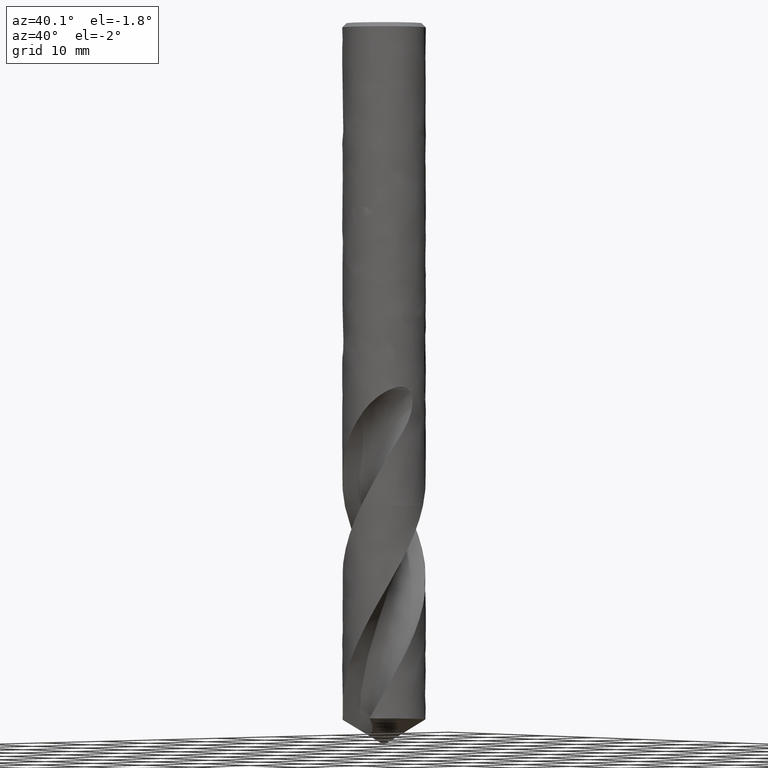
[diagram: clean part render]
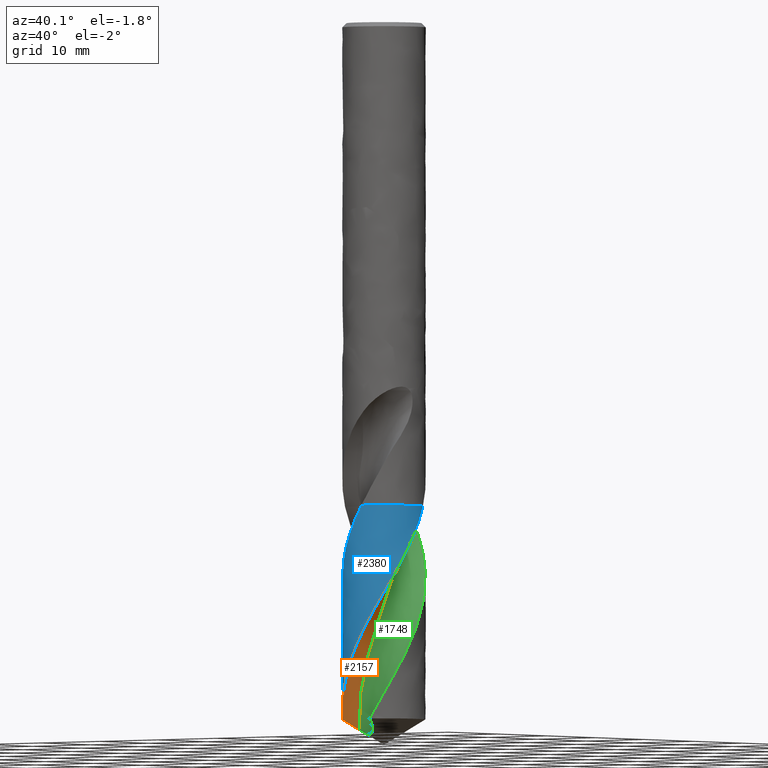
[diagram: same view with three faces highlighted in distinct colors, each labeled with its STEP entity id]
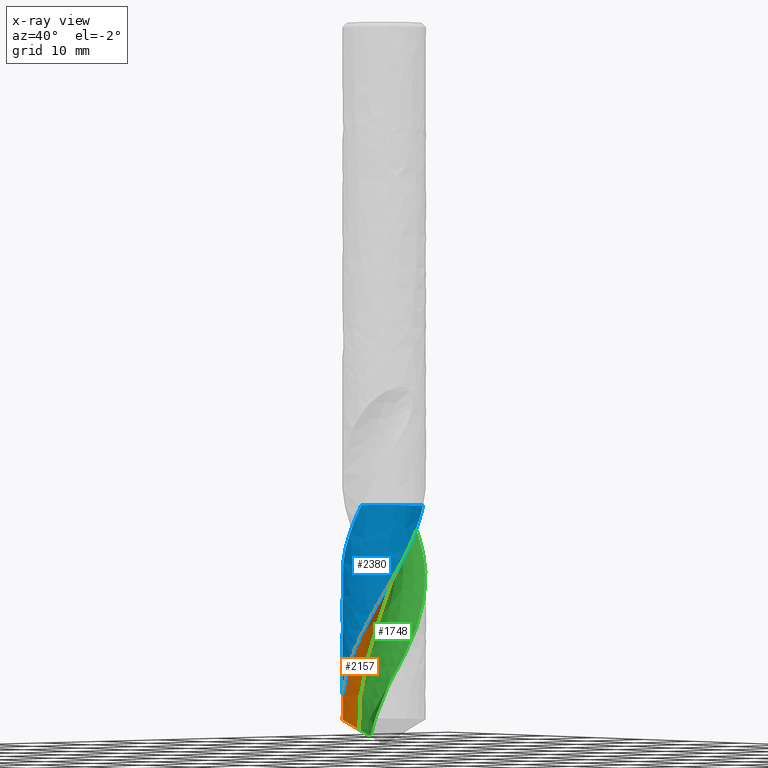
[diagram: x-ray of the same camera — body ghosted, the three highlighted faces saturated]
A machine part, auxiliary view with three faces highlighted in distinct colors.
The next image is the same camera in x-ray (body ghosted, the three faces saturated) — at least one of them is partly hidden behind the body in this view.
Their STEP definitions:

[orange] entity #2157 — the highlighted face is a freeform B-spline surface patch.
#1551 = EDGE_CURVE('', #1552, #1554, #1556, .T.);
#1552 = VERTEX_POINT('', #1553);
#1553 = CARTESIAN_POINT('', (5.20272244532201, 1.78372620010545, -63.6));
#1554 = VERTEX_POINT('', #1555);
#1555 = CARTESIAN_POINT('', (2.94247372623599, 1.49485175941624, -63.6));
#1556 = LINE('', #1557, #1558);
#1557 = CARTESIAN_POINT('', (5.20272244532201, 1.78372620010545, -63.6));
#1558 = VECTOR('', #1559, 2.27863395801377);
#1559 = DIRECTION('', (-2.26024871908602, -0.288874440689208, 0.));
#1753 = EDGE_CURVE('', #1754, #1554, #1756, .T.);
#1754 = VERTEX_POINT('', #1755);
#1755 = CARTESIAN_POINT('', (-2.79652448933047, -1.72770931655798, -93.0248651518685));
#1756 = B_SPLINE_CURVE_WITH_KNOTS('', 3, (#1757, #1758, #1759, #1760, #1761, #1762, #1763, #1764, #1765, #1766, #1767, #1768, #1769, #1770, #1771, #1772, #1773, #1774, #1775, #1776, #1777, #1778, #1779, #1780, #1781, #1782, #1783, #1784, #1785, #1786, #1787, #1788, #1789), .UNSPECIFIED., .F., .U., (4, 1, 1, 1, 1, 1, 1, 1, 1, 1, 1, 1, 1, 1, 1, 1, 1, 1, 1, 1, 1, 1, 1, 1, 1, 1, 1, 1, 1, 1, 4), (2.02513484813147, 2.04565217391304, 3.06847826086957, 4.09130434782609, 5.11413043478261, 6.13695652173913, 7.15978260869565, 8.18260869565217, 9.2054347826087, 10.2282608695652, 11.2510869565217, 12.2739130434783, 13.2967391304348, 14.3195652173913, 15.3423913043478, 16.3652173913043, 17.3880434782609, 18.4108695652174, 19.4336956521739, 20.4565217391304, 21.479347826087, 22.5021739130435, 23.525, 24.5478260869565, 25.570652173913, 26.5934782608696, 27.6163043478261, 28.6391304347826, 29.6619565217391, 30.6847826086957, 31.45), .UNSPECIFIED.);
#1757 = CARTESIAN_POINT('', (-2.79652448933047, -1.72770931655798, -93.0248651518685));
#1758 = CARTESIAN_POINT('', (-2.79525109932545, -1.72966912421712, -93.0180260432747));
#1759 = CARTESIAN_POINT('', (-2.73039373737267, -1.82925837721353, -92.6702449056953));
#1760 = CARTESIAN_POINT('', (-2.5915796419495, -2.01935285045006, -91.9815217391304));
#1761 = CARTESIAN_POINT('', (-2.35759797201996, -2.27799119451376, -90.9586956521739));
#1762 = CARTESIAN_POINT('', (-2.09842313002841, -2.51028053582391, -89.9358695652174));
#1763 = CARTESIAN_POINT('', (-1.81694570414914, -2.71383385022417, -88.9130434782609));
#1764 = CARTESIAN_POINT('', (-1.51627376767168, -2.88657167500362, -87.8902173913044));
#1765 = CARTESIAN_POINT('', (-1.19970294457075, -3.02674275065727, -86.8673913043478));
#1766 = CARTESIAN_POINT('', (-0.870682165932578, -3.13293975593438, -85.8445652173913));
#1767 = CARTESIAN_POINT('', (-0.532778850091068, -3.20411214014143, -84.8217391304348));
#1768 = CARTESIAN_POINT('', (-0.189642911366005, -3.2395753875698, -83.7989130434783));
#1769 = CARTESIAN_POINT('', (0.155029830095232, -3.23901680106992, -82.7760869565217));
#1770 = CARTESIAN_POINT('', (0.497534572918565, -3.20249772751007, -81.7532608695652));
#1771 = CARTESIAN_POINT('', (0.834194444840285, -3.13045222918963, -80.7304347826087));
#1772 = CARTESIAN_POINT('', (1.16139707400646, -3.02368222062833, -79.7076086956522));
#1773 = CARTESIAN_POINT('', (1.4756304944264, -2.88334912280424, -78.6847826086957));
#1774 = CARTESIAN_POINT('', (1.77351806667473, -2.71096211432809, -77.6619565217391));
#1775 = CARTESIAN_POINT('', (2.05185210304712, -2.50836308709396, -76.6391304347826));
#1776 = CARTESIAN_POINT('', (2.30762589739924, -2.27770844071546, -75.6163043478261));
#1777 = CARTESIAN_POINT('', (2.5380638723922, -2.02144787641475, -74.5934782608696));
#1778 = CARTESIAN_POINT('', (2.74064957351347, -1.74230037449199, -73.570652173913));
#1779 = CARTESIAN_POINT('', (2.91315125032303, -1.44322756824518, -72.5478260869565));
#1780 = CARTESIAN_POINT('', (3.05364480660174, -1.12740473012019, -71.525));
#1781 = CARTESIAN_POINT('', (3.16053383880634, -0.798189678360751, -70.5021739130435));
#1782 = CARTESIAN_POINT('', (3.23256681477038, -0.459089663115774, -69.479347826087));
#1783 = CARTESIAN_POINT('', (3.26885031173549, -0.113727309127044, -68.4565217391304));
#1784 = CARTESIAN_POINT('', (3.26886157635904, 0.234197028789018, -67.4336956521739));
#1785 = CARTESIAN_POINT('', (3.2324475815679, 0.580935185101319, -66.4108695652174));
#1786 = CARTESIAN_POINT('', (3.15985792442612, 0.922754090951455, -65.3880434782609));
#1787 = CARTESIAN_POINT('', (3.06072019700124, 1.22791132551784, -64.4510869565217));
#1788 = CARTESIAN_POINT('', (2.98013969828802, 1.41585421959721, -63.8550724637681));
#1789 = CARTESIAN_POINT('', (2.94247372623599, 1.49485175941624, -63.6));
#2157 = ADVANCED_FACE('', (#2158), #2313, .T.);
#2158 = FACE_OUTER_BOUND('', #2159, .T.);
#2159 = EDGE_LOOP('', (#2160, #2161, #2281, #2312));
#2160 = ORIENTED_EDGE('', *, *, #1551, .F.);
#2161 = ORIENTED_EDGE('', *, *, #2162, .T.);
#2162 = EDGE_CURVE('', #1552, #2163, #2165, .T.);
#2163 = VERTEX_POINT('', #2164);
#2164 = CARTESIAN_POINT('', (-4.68774650891869, -2.87663565091594, -91.6952665953484));
#2165 = B_SPLINE_CURVE_WITH_KNOTS('', 3, (#2166, #2167, #2168, #2169, #2170, #2171, #2172, #2173, #2174, #2175, #2176, #2177, #2178, #2179, #2180, #2181, #2182, #2183, #2184, #2185, #2186, #2187, #2188, #2189, #2190, #2191, #2192, #2193, #2194, #2195, #2196, #2197, #2198, #2199, #2200, #2201, #2202, #2203, #2204, #2205, #2206, #2207, #2208, #2209, #2210, #2211, #2212, #2213, #2214, #2215, #2216, #2217, #2218, #2219, #2220, #2221, #2222, #2223, #2224, #2225, #2226, #2227, #2228, #2229, #2230, #2231, #2232, #2233, #2234, #2235, #2236, #2237, #2238, #2239, #2240, #2241, #2242, #2243, #2244, #2245, #2246, #2247, #2248, #2249, #2250, #2251, #2252, #2253, #2254, #2255, #2256, #2257, #2258, #2259, #2260, #2261, #2262, #2263, #2264, #2265, #2266, #2267, #2268, #2269, #2270, #2271, #2272, #2273, #2274, #2275, #2276, #2277, #2278, #2279, #2280), .UNSPECIFIED., .F., .U., (4, 3, 3, 3, 3, 3, 3, 3, 3, 3, 3, 3, 3, 3, 3, 3, 3, 3, 3, 3, 3, 3, 3, 3, 3, 3, 3, 3, 3, 3, 3, 3, 3, 3, 3, 3, 3, 3, 4), (14.6541912505428, 15.3973720165458, 16.3933116497263, 17.0575390066171, 18.0530433212678, 18.2500072327602, 18.3375742477831, 19.3373218240852, 20.336770035305, 21.3359295030275, 22.334810052804, 23.3334198560105, 24.3317658581042, 25.3298536196611, 26.3276874443951, 27.3252704271757, 28.3226044968038, 29.3196906921722, 30.3165292130165, 31.3131192239411, 32.3094588190993, 33.305544969417, 34.3013734520268, 35.2969388183805, 35.5923233990184, 35.6798846979064, 35.7674752407423, 36.7671871101477, 37.7666038464054, 38.7657365418644, 39.7645947160137, 40.7631863818805, 41.7615181764192, 42.7595954644909, 43.7574224052928, 44.7550020289868, 45.7523363543938, 46.7494264155358, 47.0171847424647), .UNSPECIFIED.);
#2166 = CARTESIAN_POINT('', (5.20272244532201, 1.78372620010545, -63.6));
#2167 = CARTESIAN_POINT('', (5.24274699937312, 1.66698370581825, -63.8147972369112));
#2168 = CARTESIAN_POINT('', (5.2788548378056, 1.54884571242469, -64.0296470080782));
#2169 = CARTESIAN_POINT('', (5.31093557465244, 1.42967245265875, -64.2444426978957));
#2170 = CARTESIAN_POINT('', (5.35392710342845, 1.26996787196222, -64.5322912945113));
#2171 = CARTESIAN_POINT('', (5.38970966437493, 1.10831591445888, -64.8202325383916));
#2172 = CARTESIAN_POINT('', (5.41812998128591, 0.945445665224081, -65.1081148176593));
#2173 = CARTESIAN_POINT('', (5.43708449555048, 0.836821737065002, -65.3001136889595));
#2174 = CARTESIAN_POINT('', (5.45277175681692, 0.72762336208198, -65.4921387180444));
#2175 = CARTESIAN_POINT('', (5.46516150605537, 0.618069342979054, -65.6841449913077));
#2176 = CARTESIAN_POINT('', (5.48373052266747, 0.453876318447838, -65.9719125327837));
#2177 = CARTESIAN_POINT('', (5.49489550500628, 0.288818649159162, -66.2597606302762));
#2178 = CARTESIAN_POINT('', (5.49860977322145, 0.123655011360501, -66.5475478651747));
#2179 = CARTESIAN_POINT('', (5.49934465380934, 0.0909768243769016, -66.6044875475337));
#2180 = CARTESIAN_POINT('', (5.49978820392091, 0.058292517396576, -66.6614282229602));
#2181 = CARTESIAN_POINT('', (5.49994038459021, 0.0256079275561165, -66.718368769227));
#2182 = CARTESIAN_POINT('', (5.50000804168969, 0.0110768799753993, -66.7436836283429));
#2183 = CARTESIAN_POINT('', (5.50001811042445, -0.00345431541723884, -66.7689986220221));
#2184 = CARTESIAN_POINT('', (5.49997059396933, -0.0179851458883771, -66.7943136515765));
#2185 = CARTESIAN_POINT('', (5.49942810133291, -0.183882802001947, -67.0833338886423));
#2186 = CARTESIAN_POINT('', (5.49137191801881, -0.349778049763289, -67.372438652377));
#2187 = CARTESIAN_POINT('', (5.47584386134647, -0.514911648881835, -67.6614798223405));
#2188 = CARTESIAN_POINT('', (5.46032045440578, -0.679995800285115, -67.950434441623));
#2189 = CARTESIAN_POINT('', (5.43732186437267, -0.844400800986916, -68.23947255209));
#2190 = CARTESIAN_POINT('', (5.40695850437846, -1.00737268770383, -68.5284479069596));
#2191 = CARTESIAN_POINT('', (5.37660391644732, -1.17029749136832, -68.8173397760082));
#2192 = CARTESIAN_POINT('', (5.33887355118632, -1.33187198449028, -69.1063150734859));
#2193 = CARTESIAN_POINT('', (5.29394527347648, -1.49135624229659, -69.3952279081505));
#2194 = CARTESIAN_POINT('', (5.2490295376114, -1.6507959796604, -69.6840600920511));
#2195 = CARTESIAN_POINT('', (5.19689708856143, -1.80822761900591, -69.972975239083));
#2196 = CARTESIAN_POINT('', (5.13779167922727, -1.96293063068041, -70.2618281642924));
#2197 = CARTESIAN_POINT('', (5.07870229041412, -2.11759171010408, -70.5506027959173));
#2198 = CARTESIAN_POINT('', (5.01261378189042, -2.26960408912408, -70.8394603931367));
#2199 = CARTESIAN_POINT('', (4.93983324650037, -2.41827366043831, -71.128255728041));
#2200 = CARTESIAN_POINT('', (4.86707193742491, -2.56690395795588, -71.4169747723557));
#2201 = CARTESIAN_POINT('', (4.7875856288285, -2.71226788580571, -71.7057769051736));
#2202 = CARTESIAN_POINT('', (4.70174176396179, -2.85370362599508, -71.9945166188437));
#2203 = CARTESIAN_POINT('', (4.615920104188, -2.99510278123155, -72.2831816446817));
#2204 = CARTESIAN_POINT('', (4.52370160850594, -3.1326459884265, -72.5719298645387));
#2205 = CARTESIAN_POINT('', (4.42551084119423, -3.2657087736772, -72.8606155827966));
#2206 = CARTESIAN_POINT('', (4.3273450559056, -3.39873770464952, -73.1492278526694));
#2207 = CARTESIAN_POINT('', (4.22316165807716, -3.52735408647012, -73.4379232617381));
#2208 = CARTESIAN_POINT('', (4.11343897802609, -3.65097518124345, -73.7265562789202));
#2209 = CARTESIAN_POINT('', (4.00374388077559, -3.77456519934236, -74.015116737658));
#2210 = CARTESIAN_POINT('', (3.88845803351122, -3.89322354988045, -74.3037600101801));
#2211 = CARTESIAN_POINT('', (3.76811014722601, -4.00641309881698, -74.5923412943268));
#2212 = CARTESIAN_POINT('', (3.64779228969257, -4.11957440512315, -74.8808505727572));
#2213 = CARTESIAN_POINT('', (3.52235463215913, -4.22732630934363, -75.1694421693883));
#2214 = CARTESIAN_POINT('', (3.39237218677463, -4.32918132519278, -75.4579722223551));
#2215 = CARTESIAN_POINT('', (3.26242204681658, -4.43101102631797, -75.7464305649738));
#2216 = CARTESIAN_POINT('', (3.12786374352781, -4.5269982129754, -76.0349709868427));
#2217 = CARTESIAN_POINT('', (2.98931307154107, -4.61670958154329, -76.3234499704349));
#2218 = CARTESIAN_POINT('', (2.85079681530686, -4.706398665959, -76.6118572963356));
#2219 = CARTESIAN_POINT('', (2.70822064565233, -4.78986011788097, -76.9003468035821));
#2220 = CARTESIAN_POINT('', (2.56223513458968, -4.86671872158995, -77.1887747084966));
#2221 = CARTESIAN_POINT('', (2.41628601743324, -4.94355816459734, -77.4771307088909));
#2222 = CARTESIAN_POINT('', (2.2668570131315, -5.0138361419812, -77.7655690955692));
#2223 = CARTESIAN_POINT('', (2.11462779090685, -5.07723835425562, -78.0539456742705));
#2224 = CARTESIAN_POINT('', (1.96243681971514, -5.14062463529113, -78.3422497918381));
#2225 = CARTESIAN_POINT('', (1.80737265734709, -5.1971696234319, -78.6306364002786));
#2226 = CARTESIAN_POINT('', (1.65013880510413, -5.24662195358971, -78.9189611465163));
#2227 = CARTESIAN_POINT('', (1.49294494937323, -5.29606170426357, -79.20721254987));
#2228 = CARTESIAN_POINT('', (1.33350596868175, -5.33843648301705, -79.4955462798806));
#2229 = CARTESIAN_POINT('', (1.17254436343124, -5.3735593153687, -79.7838184031329));
#2230 = CARTESIAN_POINT('', (1.01162439575178, -5.40867306214105, -80.0720159561111));
#2231 = CARTESIAN_POINT('', (0.84910341658485, -5.4365558595905, -80.3602953237798));
#2232 = CARTESIAN_POINT('', (0.685718200651528, -5.45708626918207, -80.6485136685281));
#2233 = CARTESIAN_POINT('', (0.522376154106378, -5.47761125426069, -80.9366558606726));
#2234 = CARTESIAN_POINT('', (0.358088570549234, -5.49079799145668, -81.2248793547909));
#2235 = CARTESIAN_POINT('', (0.193600146371529, -5.49659157872638, -81.5130421815642));
#2236 = CARTESIAN_POINT('', (0.144796375330891, -5.49831053802718, -81.5985401896494));
#2237 = CARTESIAN_POINT('', (0.0959702652128123, -5.49937943467651, -81.6840409887377));
#2238 = CARTESIAN_POINT('', (0.0471411429997471, -5.49979797016551, -81.7695407777863));
#2239 = CARTESIAN_POINT('', (0.032666652302546, -5.49992203727479, -81.7948856098272));
#2240 = CARTESIAN_POINT('', (0.0181917761034693, -5.49998896161078, -81.8202305658445));
#2241 = CARTESIAN_POINT('', (0.00371702351324773, -5.49999874397587, -81.8455755500925));
#2242 = CARTESIAN_POINT('', (-0.0107625633920783, -5.5000085296081, -81.8709289991235));
#2243 = CARTESIAN_POINT('', (-0.0252420821241647, -5.4999611351318, -81.8962825736321));
#2244 = CARTESIAN_POINT('', (-0.0397210232296656, -5.49985656543091, -81.9216361777175));
#2245 = CARTESIAN_POINT('', (-0.204975956136162, -5.49866306248212, -82.2110087300013));
#2246 = CARTESIAN_POINT('', (-0.37019937100634, -5.49001374580317, -82.5004641714713));
#2247 = CARTESIAN_POINT('', (-0.534639492030829, -5.47395292394454, -82.7898576543162));
#2248 = CARTESIAN_POINT('', (-0.699031067337299, -5.45789684353297, -83.0791657029354));
#2249 = CARTESIAN_POINT('', (-0.862721632824731, -5.43442560630057, -83.3685560185726));
#2250 = CARTESIAN_POINT('', (-1.02496593552182, -5.40365106488399, -83.6578849811545));
#2251 = CARTESIAN_POINT('', (-1.18716412732278, -5.37288526979414, -83.9471317145455));
#2252 = CARTESIAN_POINT('', (-1.34799877776449, -5.33480478408504, -84.2364603323572));
#2253 = CARTESIAN_POINT('', (-1.50673824966186, -5.28958787118682, -84.5257278058106));
#2254 = CARTESIAN_POINT('', (-1.66543410636385, -5.24438338206996, -84.8149158002457));
#2255 = CARTESIAN_POINT('', (-1.82211576135399, -5.19202369304909, -85.1041857726252));
#2256 = CARTESIAN_POINT('', (-1.9760725031163, -5.13275145145642, -85.3933944169265));
#2257 = CARTESIAN_POINT('', (-2.12998816722824, -5.07349502446458, -85.6825258966202));
#2258 = CARTESIAN_POINT('', (-2.28125654745013, -5.00730046900748, -85.9717396401016));
#2259 = CARTESIAN_POINT('', (-2.42919395835178, -4.93447228310255, -86.2608917560238));
#2260 = CARTESIAN_POINT('', (-2.57709287034265, -4.86166304984668, -86.5499686236267));
#2261 = CARTESIAN_POINT('', (-2.72173446301128, -4.78218828807995, -86.8391279764692));
#2262 = CARTESIAN_POINT('', (-2.862467094394, -4.69641162309178, -87.1282255347538));
#2263 = CARTESIAN_POINT('', (-3.00316384856137, -4.61065682529852, -87.4172493928933));
#2264 = CARTESIAN_POINT('', (-3.14002145543507, -4.51856201640103, -87.70635566522));
#2265 = CARTESIAN_POINT('', (-3.27242443619808, -4.42054728618229, -87.9954003259505));
#2266 = CARTESIAN_POINT('', (-3.40479420638196, -4.32255714095353, -88.284372485741));
#2267 = CARTESIAN_POINT('', (-3.53277596325181, -4.21860234133729, -88.5734265277703));
#2268 = CARTESIAN_POINT('', (-3.65579394002475, -4.10915692911311, -88.8624196295707));
#2269 = CARTESIAN_POINT('', (-3.77878142608935, -3.99973864355961, -89.1513411027798));
#2270 = CARTESIAN_POINT('', (-3.89686881153192, -3.88477795176625, -89.4403437676514));
#2271 = CARTESIAN_POINT('', (-4.00952465040992, -3.76479907534986, -89.729286031441));
#2272 = CARTESIAN_POINT('', (-4.12215278795596, -3.64484970095233, -90.0181572462229));
#2273 = CARTESIAN_POINT('', (-4.22940865102544, -3.51982435491288, -90.3071094883347));
#2274 = CARTESIAN_POINT('', (-4.33081065467693, -3.39029188615623, -90.5960013395667));
#2275 = CARTESIAN_POINT('', (-4.43218782324026, -3.26079114212064, -90.8848224362344));
#2276 = CARTESIAN_POINT('', (-4.52776440039924, -3.12672119489117, -91.1737248242771));
#2277 = CARTESIAN_POINT('', (-4.61711315856921, -2.98868969298704, -91.4625664812236));
#2278 = CARTESIAN_POINT('', (-4.64110685275303, -2.95162274642556, -91.5401319508089));
#2279 = CARTESIAN_POINT('', (-4.6646538273504, -2.91426733269284, -91.6176995756519));
#2280 = CARTESIAN_POINT('', (-4.68774650891869, -2.87663565091594, -91.6952665953484));
#2281 = ORIENTED_EDGE('', *, *, #2282, .F.);
#2282 = EDGE_CURVE('', #1754, #2163, #2283, .T.);
#2283 = B_SPLINE_CURVE_WITH_KNOTS('', 3, (#2284, #2285, #2286, #2287, #2288, #2289, #2290, #2291, #2292, #2293, #2294, #2295, #2296, #2297, #2298, #2299, #2300, #2301, #2302, #2303, #2304, #2305, #2306, #2307, #2308, #2309, #2310, #2311), .UNSPECIFIED., .F., .U., (4, 3, 3, 3, 3, 3, 3, 3, 3, 4), (0., 0.295816957672479, 0.591604692497294, 0.887381914552412, 1.18316140080259, 1.47895188353788, 1.77475928608826, 2.07058755020384, 2.36643939053596, 2.58799288725204), .UNSPECIFIED.);
#2284 = CARTESIAN_POINT('', (-2.79652448933047, -1.72770931655798, -93.0248651518685));
#2285 = CARTESIAN_POINT('', (-2.87457381983883, -1.76081584133489, -92.9745130442594));
#2286 = CARTESIAN_POINT('', (-2.95200019387531, -1.79521724380933, -92.9240265106329));
#2287 = CARTESIAN_POINT('', (-3.02877371903962, -1.83088425252025, -92.8734620464338));
#2288 = CARTESIAN_POINT('', (-3.10553965998343, -1.86654773779705, -92.8229025773425));
#2289 = CARTESIAN_POINT('', (-3.18166881040836, -1.90348402099565, -92.7722543623189));
#2290 = CARTESIAN_POINT('', (-3.25712746590992, -1.94166169350169, -92.721563037442));
#2291 = CARTESIAN_POINT('', (-3.33258343949004, -1.97983800911212, -92.6708735142158));
#2292 = CARTESIAN_POINT('', (-3.40738434052905, -2.01926343256934, -92.6201303296586));
#2293 = CARTESIAN_POINT('', (-3.48149429212464, -2.05990464859284, -92.5693713952526));
#2294 = CARTESIAN_POINT('', (-3.55560481103703, -2.10054617572765, -92.5186120722834));
#2295 = CARTESIAN_POINT('', (-3.62903921626606, -2.14241167495029, -92.4678266761398));
#2296 = CARTESIAN_POINT('', (-3.70176059361555, -2.18546612086523, -92.4170474720011));
#2297 = CARTESIAN_POINT('', (-3.77448467459927, -2.22852216745769, -92.3662663799941));
#2298 = CARTESIAN_POINT('', (-3.84651000689106, -2.27277574707208, -92.3154813647262));
#2299 = CARTESIAN_POINT('', (-3.91779943952057, -2.31819029836795, -92.2647204571842));
#2300 = CARTESIAN_POINT('', (-3.9890929500501, -2.36360744746819, -92.2139566460154));
#2301 = CARTESIAN_POINT('', (-4.05966430231324, -2.41019451600767, -92.1632070241608));
#2302 = CARTESIAN_POINT('', (-4.12947668111073, -2.45791356730084, -92.1124963693562));
#2303 = CARTESIAN_POINT('', (-4.19929398336679, -2.50563598393948, -92.0617821382258));
#2304 = CARTESIAN_POINT('', (-4.26836552902421, -2.55449965180273, -92.0110971464456));
#2305 = CARTESIAN_POINT('', (-4.33665524950859, -2.60446541468576, -91.9604636140884));
#2306 = CARTESIAN_POINT('', (-4.4049504123845, -2.65443515962117, -91.9098260464604));
#2307 = CARTESIAN_POINT('', (-4.47247644278284, -2.70551656772136, -91.8592303981396));
#2308 = CARTESIAN_POINT('', (-4.53919827062752, -2.75766946871741, -91.8086968395552));
#2309 = CARTESIAN_POINT('', (-4.58916400431937, -2.79672502289815, -91.7708539564645));
#2310 = CARTESIAN_POINT('', (-4.63868483769741, -2.836386157631, -91.7330412609807));
#2311 = CARTESIAN_POINT('', (-4.68774650891869, -2.87663565091594, -91.6952665953484));
#2312 = ORIENTED_EDGE('', *, *, #1753, .T.);
#2313 = B_SPLINE_SURFACE_WITH_KNOTS('', 3, 1, ((#2314, #2315), (#2316, #2317), (#2318, #2319), (#2320, #2321), (#2322, #2323), (#2324, #2325), (#2326, #2327), (#2328, #2329), (#2330, #2331), (#2332, #2333), (#2334, #2335), (#2336, #2337), (#2338, #2339), (#2340, #2341), (#2342, #2343), (#2344, #2345), (#2346, #2347), (#2348, #2349), (#2350, #2351), (#2352, #2353), (#2354, #2355), (#2356, #2357), (#2358, #2359), (#2360, #2361), (#2362, #2363), (#2364, #2365), (#2366, #2367), (#2368, #2369), (#2370, #2371), (#2372, #2373), (#2374, #2375), (#2376, #2377), (#2378, #2379)), .UNSPECIFIED., .F., .F., .U., (4, 1, 1, 1, 1, 1, 1, 1, 1, 1, 1, 1, 1, 1, 1, 1, 1, 1, 1, 1, 1, 1, 1, 1, 1, 1, 1, 1, 1, 1, 4), (2, 2), (2.02513484813148, 2.04565217391304, 3.06847826086957, 4.09130434782609, 5.11413043478261, 6.13695652173913, 7.15978260869565, 8.18260869565217, 9.2054347826087, 10.2282608695652, 11.2510869565217, 12.2739130434783, 13.2967391304348, 14.3195652173913, 15.3423913043478, 16.3652173913043, 17.3880434782609, 18.4108695652174, 19.4336956521739, 20.4565217391304, 21.479347826087, 22.5021739130435, 23.525, 24.5478260869565, 25.570652173913, 26.5934782608696, 27.6163043478261, 28.6391304347826, 29.6619565217391, 30.6847826086957, 31.4500000000056), (0., 0.208885364886835), .UNSPECIFIED.);
#2314 = CARTESIAN_POINT('', (-2.79652448933047, -1.72770931655798, -93.0248651518685));
#2315 = CARTESIAN_POINT('', (-5.18868643773583, -2.23877917495712, -93.0248651518685));
#2316 = CARTESIAN_POINT('', (-2.79525109932545, -1.72966912421712, -93.0180260432747));
#2317 = CARTESIAN_POINT('', (-5.18701101160028, -2.24243107851786, -93.0180260432747));
#2318 = CARTESIAN_POINT('', (-2.73039373737267, -1.82925837721353, -92.6702449056953));
#2319 = CARTESIAN_POINT('', (-5.10161943364844, -2.42804286981364, -92.6702449056953));
#2320 = CARTESIAN_POINT('', (-2.5915796419495, -2.01935285045006, -91.9815217391304));
#2321 = CARTESIAN_POINT('', (-4.91308690263439, -2.78609298640461, -91.9815217391304));
#2322 = CARTESIAN_POINT('', (-2.35759797201996, -2.27799119451376, -90.9586956521739));
#2323 = CARTESIAN_POINT('', (-4.57984248580162, -3.28453648909264, -90.9586956521739));
#2324 = CARTESIAN_POINT('', (-2.09842313002841, -2.51028053582391, -89.9358695652174));
#2325 = CARTESIAN_POINT('', (-4.1971560408144, -3.74446890062531, -89.9358695652174));
#2326 = CARTESIAN_POINT('', (-1.81694570414914, -2.71383385022417, -88.9130434782609));
#2327 = CARTESIAN_POINT('', (-3.76934665776341, -4.16110704692413, -88.9130434782609));
#2328 = CARTESIAN_POINT('', (-1.51627376767168, -2.88657167500362, -87.8902173913044));
#2329 = CARTESIAN_POINT('', (-3.30118028705619, -4.53013644149754, -87.8902173913044));
#2330 = CARTESIAN_POINT('', (-1.19970294457075, -3.02674275065727, -86.8673913043478));
#2331 = CARTESIAN_POINT('', (-2.79782399131666, -4.84775388348158, -86.8673913043478));
#2332 = CARTESIAN_POINT('', (-0.870682165932578, -3.13293975593438, -85.8445652173913));
#2333 = CARTESIAN_POINT('', (-2.2647916404622, -5.11070278847768, -85.8445652173913));
#2334 = CARTESIAN_POINT('', (-0.532778850091068, -3.20411214014143, -84.8217391304348));
#2335 = CARTESIAN_POINT('', (-1.7078879002954, -5.31630372654467, -84.8217391304348));
#2336 = CARTESIAN_POINT('', (-0.189642911366005, -3.2395753875698, -83.7989130434783));
#2337 = CARTESIAN_POINT('', (-1.13314933601222, -5.46247918498585, -83.7989130434783));
#2338 = CARTESIAN_POINT('', (0.155029830095232, -3.23901680106992, -82.7760869565217));
#2339 = CARTESIAN_POINT('', (-0.54678362612237, -5.5477725606891, -82.7760869565217));
#2340 = CARTESIAN_POINT('', (0.497534572918565, -3.20249772751007, -81.7532608695652));
#2341 = CARTESIAN_POINT('', (0.0448926827622906, -5.57136118444074, -81.7532608695652));
#2342 = CARTESIAN_POINT('', (0.834194444840285, -3.13045222918963, -80.7304347826087));
#2343 = CARTESIAN_POINT('', (0.635517286166381, -5.53306329688199, -80.7304347826087));
#2344 = CARTESIAN_POINT('', (1.16139707400646, -3.02368222062833, -79.7076086956522));
#2345 = CARTESIAN_POINT('', (1.21874553977562, -5.4333389278765, -79.7076086956522));
#2346 = CARTESIAN_POINT('', (1.4756304944264, -2.88334912280424, -78.6847826086957));
#2347 = CARTESIAN_POINT('', (1.78831361637607, -5.2732846860817, -78.6847826086957));
#2348 = CARTESIAN_POINT('', (1.77351806667473, -2.71096211432809, -77.6619565217391));
#2349 = CARTESIAN_POINT('', (2.33810083941841, -5.05462251412204, -77.6619565217391));
#2350 = CARTESIAN_POINT('', (2.05185210304712, -2.50836308709396, -76.6391304347826));
#2351 = CARTESIAN_POINT('', (2.86219063769268, -4.77968251450377, -76.6391304347826));
#2352 = CARTESIAN_POINT('', (2.30762589739924, -2.27770844071546, -75.6163043478261));
#2353 = CARTESIAN_POINT('', (3.35492957765179, -4.45137999969844, -75.6163043478261));
#2354 = CARTESIAN_POINT('', (2.5380638723922, -2.02144787641475, -74.5934782608696));
#2355 = CARTESIAN_POINT('', (3.81098394457599, -4.07318696777957, -74.5934782608696));
#2356 = CARTESIAN_POINT('', (2.74064957351347, -1.74230037449199, -73.570652173913));
#2357 = CARTESIAN_POINT('', (4.22539336621201, -3.64909824906328, -73.570652173913));
#2358 = CARTESIAN_POINT('', (2.91315125032303, -1.44322756824518, -72.5478260869565));
#2359 = CARTESIAN_POINT('', (4.59362098417487, -3.18359262086184, -72.5478260869565));
#2360 = CARTESIAN_POINT('', (3.05364480660174, -1.12740473012019, -71.525));
#2361 = CARTESIAN_POINT('', (4.9115997477922, -2.68158920272418, -71.525));
#2362 = CARTESIAN_POINT('', (3.16053383880634, -0.798189678360751, -70.5021739130435));
#2363 = CARTESIAN_POINT('', (5.17577427601449, -2.14839958626433, -70.5021739130435));
#2364 = CARTESIAN_POINT('', (3.23256681477038, -0.459089663115774, -69.479347826087));
#2365 = CARTESIAN_POINT('', (5.38313836097776, -1.58967581284955, -69.479347826087));
#2366 = CARTESIAN_POINT('', (3.26885031173549, -0.113727309127044, -68.4565217391304));
#2367 = CARTESIAN_POINT('', (5.5312660052616, -1.01135576067502, -68.4565217391304));
#2368 = CARTESIAN_POINT('', (3.26886157635904, 0.234197028789018, -67.4336956521739));
#2369 = CARTESIAN_POINT('', (5.61834220353625, -0.419602260996366, -67.4336956521739));
#2370 = CARTESIAN_POINT('', (3.2324475815679, 0.580935185101319, -66.4108695652174));
#2371 = CARTESIAN_POINT('', (5.64316882481314, 0.179248025278066, -66.4108695652174));
#2372 = CARTESIAN_POINT('', (3.15985792442612, 0.922754090951455, -65.3880434782609));
#2373 = CARTESIAN_POINT('', (5.60523630634286, 0.778783370016998, -65.3880434782609));
#2374 = CARTESIAN_POINT('', (3.06072019700104, 1.22791132551845, -64.4510869565199));
#2375 = CARTESIAN_POINT('', (5.5129769046327, 1.32260666154903, -64.4510869565199));
#2376 = CARTESIAN_POINT('', (2.98013969828751, 1.4158542195984, -63.8550724637644));
#2377 = CARTESIAN_POINT('', (5.42295081580727, 1.66242621942403, -63.8550724637644));
#2378 = CARTESIAN_POINT('', (2.94247372623516, 1.49485175941798, -63.5999999999944));
#2379 = CARTESIAN_POINT('', (5.37865444631771, 1.80621145049637, -63.5999999999944));

[blue] entity #2380 — the highlighted face is a freeform B-spline surface patch.
#1552 = VERTEX_POINT('', #1553);
#1553 = CARTESIAN_POINT('', (5.20272244532201, 1.78372620010545, -63.6));
#1663 = VERTEX_POINT('', #1664);
#1664 = CARTESIAN_POINT('', (0.714456293765341, -5.45339822535445, -63.6));
#1737 = EDGE_CURVE('', #1552, #1663, #1738, .T.);
#1738 = CIRCLE('', #1739, 5.5);
#1739 = AXIS2_PLACEMENT_3D('', #1740, #1741, #1742);
#1740 = CARTESIAN_POINT('', (-9.02056207507939E-16, 4.89357754345122E-15, -63.6));
#1741 = DIRECTION('', (3.74939945665464E-33, 6.12323399573677E-17, -1.));
#1742 = DIRECTION('', (-1., -1.20440518617658E-16, -1.11242542372927E-32));
#2162 = EDGE_CURVE('', #1552, #2163, #2165, .T.);
#2163 = VERTEX_POINT('', #2164);
#2164 = CARTESIAN_POINT('', (-4.68774650891869, -2.87663565091594, -91.6952665953484));
#2165 = B_SPLINE_CURVE_WITH_KNOTS('', 3, (#2166, #2167, #2168, #2169, #2170, #2171, #2172, #2173, #2174, #2175, #2176, #2177, #2178, #2179, #2180, #2181, #2182, #2183, #2184, #2185, #2186, #2187, #2188, #2189, #2190, #2191, #2192, #2193, #2194, #2195, #2196, #2197, #2198, #2199, #2200, #2201, #2202, #2203, #2204, #2205, #2206, #2207, #2208, #2209, #2210, #2211, #2212, #2213, #2214, #2215, #2216, #2217, #2218, #2219, #2220, #2221, #2222, #2223, #2224, #2225, #2226, #2227, #2228, #2229, #2230, #2231, #2232, #2233, #2234, #2235, #2236, #2237, #2238, #2239, #2240, #2241, #2242, #2243, #2244, #2245, #2246, #2247, #2248, #2249, #2250, #2251, #2252, #2253, #2254, #2255, #2256, #2257, #2258, #2259, #2260, #2261, #2262, #2263, #2264, #2265, #2266, #2267, #2268, #2269, #2270, #2271, #2272, #2273, #2274, #2275, #2276, #2277, #2278, #2279, #2280), .UNSPECIFIED., .F., .U., (4, 3, 3, 3, 3, 3, 3, 3, 3, 3, 3, 3, 3, 3, 3, 3, 3, 3, 3, 3, 3, 3, 3, 3, 3, 3, 3, 3, 3, 3, 3, 3, 3, 3, 3, 3, 3, 3, 4), (14.6541912505428, 15.3973720165458, 16.3933116497263, 17.0575390066171, 18.0530433212678, 18.2500072327602, 18.3375742477831, 19.3373218240852, 20.336770035305, 21.3359295030275, 22.334810052804, 23.3334198560105, 24.3317658581042, 25.3298536196611, 26.3276874443951, 27.3252704271757, 28.3226044968038, 29.3196906921722, 30.3165292130165, 31.3131192239411, 32.3094588190993, 33.305544969417, 34.3013734520268, 35.2969388183805, 35.5923233990184, 35.6798846979064, 35.7674752407423, 36.7671871101477, 37.7666038464054, 38.7657365418644, 39.7645947160137, 40.7631863818805, 41.7615181764192, 42.7595954644909, 43.7574224052928, 44.7550020289868, 45.7523363543938, 46.7494264155358, 47.0171847424647), .UNSPECIFIED.);
#2166 = CARTESIAN_POINT('', (5.20272244532201, 1.78372620010545, -63.6));
#2167 = CARTESIAN_POINT('', (5.24274699937312, 1.66698370581825, -63.8147972369112));
#2168 = CARTESIAN_POINT('', (5.2788548378056, 1.54884571242469, -64.0296470080782));
#2169 = CARTESIAN_POINT('', (5.31093557465244, 1.42967245265875, -64.2444426978957));
#2170 = CARTESIAN_POINT('', (5.35392710342845, 1.26996787196222, -64.5322912945113));
#2171 = CARTESIAN_POINT('', (5.38970966437493, 1.10831591445888, -64.8202325383916));
#2172 = CARTESIAN_POINT('', (5.41812998128591, 0.945445665224081, -65.1081148176593));
#2173 = CARTESIAN_POINT('', (5.43708449555048, 0.836821737065002, -65.3001136889595));
#2174 = CARTESIAN_POINT('', (5.45277175681692, 0.72762336208198, -65.4921387180444));
#2175 = CARTESIAN_POINT('', (5.46516150605537, 0.618069342979054, -65.6841449913077));
#2176 = CARTESIAN_POINT('', (5.48373052266747, 0.453876318447838, -65.9719125327837));
#2177 = CARTESIAN_POINT('', (5.49489550500628, 0.288818649159162, -66.2597606302762));
#2178 = CARTESIAN_POINT('', (5.49860977322145, 0.123655011360501, -66.5475478651747));
#2179 = CARTESIAN_POINT('', (5.49934465380934, 0.0909768243769016, -66.6044875475337));
#2180 = CARTESIAN_POINT('', (5.49978820392091, 0.058292517396576, -66.6614282229602));
#2181 = CARTESIAN_POINT('', (5.49994038459021, 0.0256079275561165, -66.718368769227));
#2182 = CARTESIAN_POINT('', (5.50000804168969, 0.0110768799753993, -66.7436836283429));
#2183 = CARTESIAN_POINT('', (5.50001811042445, -0.00345431541723884, -66.7689986220221));
#2184 = CARTESIAN_POINT('', (5.49997059396933, -0.0179851458883771, -66.7943136515765));
#2185 = CARTESIAN_POINT('', (5.49942810133291, -0.183882802001947, -67.0833338886423));
#2186 = CARTESIAN_POINT('', (5.49137191801881, -0.349778049763289, -67.372438652377));
#2187 = CARTESIAN_POINT('', (5.47584386134647, -0.514911648881835, -67.6614798223405));
#2188 = CARTESIAN_POINT('', (5.46032045440578, -0.679995800285115, -67.950434441623));
#2189 = CARTESIAN_POINT('', (5.43732186437267, -0.844400800986916, -68.23947255209));
#2190 = CARTESIAN_POINT('', (5.40695850437846, -1.00737268770383, -68.5284479069596));
#2191 = CARTESIAN_POINT('', (5.37660391644732, -1.17029749136832, -68.8173397760082));
#2192 = CARTESIAN_POINT('', (5.33887355118632, -1.33187198449028, -69.1063150734859));
#2193 = CARTESIAN_POINT('', (5.29394527347648, -1.49135624229659, -69.3952279081505));
#2194 = CARTESIAN_POINT('', (5.2490295376114, -1.6507959796604, -69.6840600920511));
#2195 = CARTESIAN_POINT('', (5.19689708856143, -1.80822761900591, -69.972975239083));
#2196 = CARTESIAN_POINT('', (5.13779167922727, -1.96293063068041, -70.2618281642924));
#2197 = CARTESIAN_POINT('', (5.07870229041412, -2.11759171010408, -70.5506027959173));
#2198 = CARTESIAN_POINT('', (5.01261378189042, -2.26960408912408, -70.8394603931367));
#2199 = CARTESIAN_POINT('', (4.93983324650037, -2.41827366043831, -71.128255728041));
#2200 = CARTESIAN_POINT('', (4.86707193742491, -2.56690395795588, -71.4169747723557));
#2201 = CARTESIAN_POINT('', (4.7875856288285, -2.71226788580571, -71.7057769051736));
#2202 = CARTESIAN_POINT('', (4.70174176396179, -2.85370362599508, -71.9945166188437));
#2203 = CARTESIAN_POINT('', (4.615920104188, -2.99510278123155, -72.2831816446817));
#2204 = CARTESIAN_POINT('', (4.52370160850594, -3.1326459884265, -72.5719298645387));
#2205 = CARTESIAN_POINT('', (4.42551084119423, -3.2657087736772, -72.8606155827966));
#2206 = CARTESIAN_POINT('', (4.3273450559056, -3.39873770464952, -73.1492278526694));
#2207 = CARTESIAN_POINT('', (4.22316165807716, -3.52735408647012, -73.4379232617381));
#2208 = CARTESIAN_POINT('', (4.11343897802609, -3.65097518124345, -73.7265562789202));
#2209 = CARTESIAN_POINT('', (4.00374388077559, -3.77456519934236, -74.015116737658));
#2210 = CARTESIAN_POINT('', (3.88845803351122, -3.89322354988045, -74.3037600101801));
#2211 = CARTESIAN_POINT('', (3.76811014722601, -4.00641309881698, -74.5923412943268));
#2212 = CARTESIAN_POINT('', (3.64779228969257, -4.11957440512315, -74.8808505727572));
#2213 = CARTESIAN_POINT('', (3.52235463215913, -4.22732630934363, -75.1694421693883));
#2214 = CARTESIAN_POINT('', (3.39237218677463, -4.32918132519278, -75.4579722223551));
#2215 = CARTESIAN_POINT('', (3.26242204681658, -4.43101102631797, -75.7464305649738));
#2216 = CARTESIAN_POINT('', (3.12786374352781, -4.5269982129754, -76.0349709868427));
#2217 = CARTESIAN_POINT('', (2.98931307154107, -4.61670958154329, -76.3234499704349));
#2218 = CARTESIAN_POINT('', (2.85079681530686, -4.706398665959, -76.6118572963356));
#2219 = CARTESIAN_POINT('', (2.70822064565233, -4.78986011788097, -76.9003468035821));
#2220 = CARTESIAN_POINT('', (2.56223513458968, -4.86671872158995, -77.1887747084966));
#2221 = CARTESIAN_POINT('', (2.41628601743324, -4.94355816459734, -77.4771307088909));
#2222 = CARTESIAN_POINT('', (2.2668570131315, -5.0138361419812, -77.7655690955692));
#2223 = CARTESIAN_POINT('', (2.11462779090685, -5.07723835425562, -78.0539456742705));
#2224 = CARTESIAN_POINT('', (1.96243681971514, -5.14062463529113, -78.3422497918381));
#2225 = CARTESIAN_POINT('', (1.80737265734709, -5.1971696234319, -78.6306364002786));
#2226 = CARTESIAN_POINT('', (1.65013880510413, -5.24662195358971, -78.9189611465163));
#2227 = CARTESIAN_POINT('', (1.49294494937323, -5.29606170426357, -79.20721254987));
#2228 = CARTESIAN_POINT('', (1.33350596868175, -5.33843648301705, -79.4955462798806));
#2229 = CARTESIAN_POINT('', (1.17254436343124, -5.3735593153687, -79.7838184031329));
#2230 = CARTESIAN_POINT('', (1.01162439575178, -5.40867306214105, -80.0720159561111));
#2231 = CARTESIAN_POINT('', (0.84910341658485, -5.4365558595905, -80.3602953237798));
#2232 = CARTESIAN_POINT('', (0.685718200651528, -5.45708626918207, -80.6485136685281));
#2233 = CARTESIAN_POINT('', (0.522376154106378, -5.47761125426069, -80.9366558606726));
#2234 = CARTESIAN_POINT('', (0.358088570549234, -5.49079799145668, -81.2248793547909));
#2235 = CARTESIAN_POINT('', (0.193600146371529, -5.49659157872638, -81.5130421815642));
#2236 = CARTESIAN_POINT('', (0.144796375330891, -5.49831053802718, -81.5985401896494));
#2237 = CARTESIAN_POINT('', (0.0959702652128123, -5.49937943467651, -81.6840409887377));
#2238 = CARTESIAN_POINT('', (0.0471411429997471, -5.49979797016551, -81.7695407777863));
#2239 = CARTESIAN_POINT('', (0.032666652302546, -5.49992203727479, -81.7948856098272));
#2240 = CARTESIAN_POINT('', (0.0181917761034693, -5.49998896161078, -81.8202305658445));
#2241 = CARTESIAN_POINT('', (0.00371702351324773, -5.49999874397587, -81.8455755500925));
#2242 = CARTESIAN_POINT('', (-0.0107625633920783, -5.5000085296081, -81.8709289991235));
#2243 = CARTESIAN_POINT('', (-0.0252420821241647, -5.4999611351318, -81.8962825736321));
#2244 = CARTESIAN_POINT('', (-0.0397210232296656, -5.49985656543091, -81.9216361777175));
#2245 = CARTESIAN_POINT('', (-0.204975956136162, -5.49866306248212, -82.2110087300013));
#2246 = CARTESIAN_POINT('', (-0.37019937100634, -5.49001374580317, -82.5004641714713));
#2247 = CARTESIAN_POINT('', (-0.534639492030829, -5.47395292394454, -82.7898576543162));
#2248 = CARTESIAN_POINT('', (-0.699031067337299, -5.45789684353297, -83.0791657029354));
#2249 = CARTESIAN_POINT('', (-0.862721632824731, -5.43442560630057, -83.3685560185726));
#2250 = CARTESIAN_POINT('', (-1.02496593552182, -5.40365106488399, -83.6578849811545));
#2251 = CARTESIAN_POINT('', (-1.18716412732278, -5.37288526979414, -83.9471317145455));
#2252 = CARTESIAN_POINT('', (-1.34799877776449, -5.33480478408504, -84.2364603323572));
#2253 = CARTESIAN_POINT('', (-1.50673824966186, -5.28958787118682, -84.5257278058106));
#2254 = CARTESIAN_POINT('', (-1.66543410636385, -5.24438338206996, -84.8149158002457));
#2255 = CARTESIAN_POINT('', (-1.82211576135399, -5.19202369304909, -85.1041857726252));
#2256 = CARTESIAN_POINT('', (-1.9760725031163, -5.13275145145642, -85.3933944169265));
#2257 = CARTESIAN_POINT('', (-2.12998816722824, -5.07349502446458, -85.6825258966202));
#2258 = CARTESIAN_POINT('', (-2.28125654745013, -5.00730046900748, -85.9717396401016));
#2259 = CARTESIAN_POINT('', (-2.42919395835178, -4.93447228310255, -86.2608917560238));
#2260 = CARTESIAN_POINT('', (-2.57709287034265, -4.86166304984668, -86.5499686236267));
#2261 = CARTESIAN_POINT('', (-2.72173446301128, -4.78218828807995, -86.8391279764692));
#2262 = CARTESIAN_POINT('', (-2.862467094394, -4.69641162309178, -87.1282255347538));
#2263 = CARTESIAN_POINT('', (-3.00316384856137, -4.61065682529852, -87.4172493928933));
#2264 = CARTESIAN_POINT('', (-3.14002145543507, -4.51856201640103, -87.70635566522));
#2265 = CARTESIAN_POINT('', (-3.27242443619808, -4.42054728618229, -87.9954003259505));
#2266 = CARTESIAN_POINT('', (-3.40479420638196, -4.32255714095353, -88.284372485741));
#2267 = CARTESIAN_POINT('', (-3.53277596325181, -4.21860234133729, -88.5734265277703));
#2268 = CARTESIAN_POINT('', (-3.65579394002475, -4.10915692911311, -88.8624196295707));
#2269 = CARTESIAN_POINT('', (-3.77878142608935, -3.99973864355961, -89.1513411027798));
#2270 = CARTESIAN_POINT('', (-3.89686881153192, -3.88477795176625, -89.4403437676514));
#2271 = CARTESIAN_POINT('', (-4.00952465040992, -3.76479907534986, -89.729286031441));
#2272 = CARTESIAN_POINT('', (-4.12215278795596, -3.64484970095233, -90.0181572462229));
#2273 = CARTESIAN_POINT('', (-4.22940865102544, -3.51982435491288, -90.3071094883347));
#2274 = CARTESIAN_POINT('', (-4.33081065467693, -3.39029188615623, -90.5960013395667));
#2275 = CARTESIAN_POINT('', (-4.43218782324026, -3.26079114212064, -90.8848224362344));
#2276 = CARTESIAN_POINT('', (-4.52776440039924, -3.12672119489117, -91.1737248242771));
#2277 = CARTESIAN_POINT('', (-4.61711315856921, -2.98868969298704, -91.4625664812236));
#2278 = CARTESIAN_POINT('', (-4.64110685275303, -2.95162274642556, -91.5401319508089));
#2279 = CARTESIAN_POINT('', (-4.6646538273504, -2.91426733269284, -91.6176995756519));
#2280 = CARTESIAN_POINT('', (-4.68774650891869, -2.87663565091594, -91.6952665953484));
#2380 = ADVANCED_FACE('', (#2381), #2481, .T.);
#2381 = FACE_OUTER_BOUND('', #2382, .T.);
#2382 = EDGE_LOOP('', (#2383, #2384, #2414, #2465, #2473, #2480));
#2383 = ORIENTED_EDGE('', *, *, #1737, .T.);
#2384 = ORIENTED_EDGE('', *, *, #2385, .T.);
#2385 = EDGE_CURVE('', #1663, #2386, #2388, .T.);
#2386 = VERTEX_POINT('', #2387);
#2387 = CARTESIAN_POINT('', (-1.45523790382385, -5.30398742864973, -67.3994651246476));
#2388 = B_SPLINE_CURVE_WITH_KNOTS('', 3, (#2389, #2390, #2391, #2392, #2393, #2394, #2395, #2396, #2397, #2398, #2399, #2400, #2401, #2402, #2403, #2404, #2405, #2406, #2407, #2408, #2409, #2410, #2411, #2412, #2413), .UNSPECIFIED., .F., .U., (4, 3, 3, 3, 3, 3, 3, 3, 4), (5.63758894589785, 6.31309553610535, 6.97717186875573, 7.06473277145249, 7.1523237945891, 7.81836378293468, 8.81791880769282, 9.81717496948263, 10.0223664958706), .UNSPECIFIED.);
#2389 = CARTESIAN_POINT('', (0.714456293765341, -5.45339822535445, -63.6));
#2390 = CARTESIAN_POINT('', (0.602931321987996, -5.46800924672235, -63.7950633634761));
#2391 = CARTESIAN_POINT('', (0.490910463112525, -5.47920243172668, -63.9901731018263));
#2392 = CARTESIAN_POINT('', (0.378694652772514, -5.48694727147632, -64.1852337242312));
#2393 = CARTESIAN_POINT('', (0.268377647910881, -5.49456106067166, -64.3769937227995));
#2394 = CARTESIAN_POINT('', (0.157834979974245, -5.49884604563291, -64.5687850125975));
#2395 = CARTESIAN_POINT('', (0.0472962498844058, -5.49979663849004, -64.7605661219952));
#2396 = CARTESIAN_POINT('', (0.0327213124657052, -5.49992197764847, -64.7858531654169));
#2397 = CARTESIAN_POINT('', (0.0181461519456772, -5.49998937675399, -64.8111404338045));
#2398 = CARTESIAN_POINT('', (0.00357127123749257, -5.4999988405473, -64.8364278187712));
#2399 = CARTESIAN_POINT('', (-0.0110086231446526, -5.50000830759611, -64.8617239024508));
#2400 = CARTESIAN_POINT('', (-0.0255882949925753, -5.4999597995079, -64.8870202025148));
#2401 = CARTESIAN_POINT('', (-0.0401672423751716, -5.49985332464784, -64.9123166096839));
#2402 = CARTESIAN_POINT('', (-0.151025200155277, -5.49904369242739, -65.1046698684172));
#2403 = CARTESIAN_POINT('', (-0.261855447889113, -5.49488096805994, -65.297054145513));
#2404 = CARTESIAN_POINT('', (-0.372439331926206, -5.48737541489863, -65.4894204360003));
#2405 = CARTESIAN_POINT('', (-0.538397350784975, -5.47611150656392, -65.7781128502925));
#2406 = CARTESIAN_POINT('', (-0.70386692249045, -5.45730926492879, -66.0668903026584));
#2407 = CARTESIAN_POINT('', (-0.868074705624815, -5.43106309164737, -66.3556102224259));
#2408 = CARTESIAN_POINT('', (-1.03223339128653, -5.40482476586716, -66.6442438160881));
#2409 = CARTESIAN_POINT('', (-1.19521480600383, -5.37113386416282, -66.9329676358594));
#2410 = CARTESIAN_POINT('', (-1.35626771918252, -5.33015364449313, -67.2216343224735));
#2411 = CARTESIAN_POINT('', (-1.38933901195811, -5.32173859122923, -67.2809103723081));
#2412 = CARTESIAN_POINT('', (-1.42233118857965, -5.31301593785301, -67.3401877451116));
#2413 = CARTESIAN_POINT('', (-1.4552379038239, -5.30398742864971, -67.3994651246477));
#2414 = ORIENTED_EDGE('', *, *, #2415, .T.);
#2415 = EDGE_CURVE('', #2386, #2416, #2418, .T.);
#2416 = VERTEX_POINT('', #2417);
#2417 = CARTESIAN_POINT('', (-5.5, 5.22897180196714E-15, -79.8955900690347));
#2418 = B_SPLINE_CURVE_WITH_KNOTS('', 3, (#2419, #2420, #2421, #2422, #2423, #2424, #2425, #2426, #2427, #2428, #2429, #2430, #2431, #2432, #2433, #2434, #2435, #2436, #2437, #2438, #2439, #2440, #2441, #2442, #2443, #2444, #2445, #2446, #2447, #2448, #2449, #2450, #2451, #2452, #2453, #2454, #2455, #2456, #2457, #2458, #2459, #2460, #2461, #2462, #2463, #2464), .UNSPECIFIED., .F., .U., (4, 3, 3, 3, 3, 3, 3, 3, 3, 3, 3, 3, 3, 3, 3, 4), (0., 0.998911147792222, 1.99754720117712, 2.99591602247435, 3.99402358040119, 4.99187464014306, 5.98947273044797, 6.98682017001586, 7.9839182731192, 8.98076759414712, 9.9773676589383, 10.973716916191, 11.9698126901722, 12.9656511145799, 13.9612270721202, 14.4041507434481), .UNSPECIFIED.);
#2419 = CARTESIAN_POINT('', (-1.45523790382385, -5.30398742864973, -67.3994651246476));
#2420 = CARTESIAN_POINT('', (-1.61543401558996, -5.26003493874976, -67.688038616316));
#2421 = CARTESIAN_POINT('', (-1.77364768349607, -5.20881438093821, -67.9767034753213));
#2422 = CARTESIAN_POINT('', (-1.92915023440471, -5.15057078129182, -68.2653137929612));
#2423 = CARTESIAN_POINT('', (-2.0846099608017, -5.0923432215991, -68.5538446289731));
#2424 = CARTESIAN_POINT('', (-2.23744059211261, -5.02706637483969, -68.8424670212206));
#2425 = CARTESIAN_POINT('', (-2.38694071803072, -4.95504934471971, -69.1310349998531));
#2426 = CARTESIAN_POINT('', (-2.53640083815231, -4.8830515861464, -69.4195257585384));
#2427 = CARTESIAN_POINT('', (-2.68260905901597, -4.80428031693679, -69.7081081640205));
#2428 = CARTESIAN_POINT('', (-2.82489731972277, -4.71910533184238, -69.9966357976578));
#2429 = CARTESIAN_POINT('', (-2.96714834498135, -4.63395263620973, -70.2850879264312));
#2430 = CARTESIAN_POINT('', (-3.1055529717077, -4.54235685428152, -70.5736320037278));
#2431 = CARTESIAN_POINT('', (-3.23948188959779, -4.4447448843514, -70.8621210236812));
#2432 = CARTESIAN_POINT('', (-3.3733763898301, -4.34715799918586, -71.1505359064242));
#2433 = CARTESIAN_POINT('', (-3.50286358918982, -4.24350990300589, -71.4390428829801));
#2434 = CARTESIAN_POINT('', (-3.6273572417991, -4.13428100645899, -71.7274947170107));
#2435 = CARTESIAN_POINT('', (-3.75181933349667, -4.02507980099103, -72.0158734243984));
#2436 = CARTESIAN_POINT('', (-3.87135157765918, -3.91024696017403, -72.30434391582));
#2437 = CARTESIAN_POINT('', (-3.98541403957079, -3.79031330277486, -72.592759704267));
#2438 = CARTESIAN_POINT('', (-4.0994478428067, -3.67040977921406, -72.8811030270281));
#2439 = CARTESIAN_POINT('', (-4.20807160951592, -3.54534800529917, -73.1695373316529));
#2440 = CARTESIAN_POINT('', (-4.31079493739255, -3.41570593109985, -73.4579177844074));
#2441 = CARTESIAN_POINT('', (-4.41349258447793, -3.2860962673677, -73.746226142163));
#2442 = CARTESIAN_POINT('', (-4.51034530038361, -3.15184223599014, -74.0346247998629));
#2443 = CARTESIAN_POINT('', (-4.60091677838791, -3.01356347176372, -74.3229700296439));
#2444 = CARTESIAN_POINT('', (-4.69146565825448, -2.87531920893474, -74.6112433155265));
#2445 = CARTESIAN_POINT('', (-4.7757828307952, -2.73298147861536, -74.8996069103125));
#2446 = CARTESIAN_POINT('', (-4.85349072799714, -2.58720462144875, -75.1879169063772));
#2447 = CARTESIAN_POINT('', (-4.93117919480211, -2.4414642149172, -75.4761548122442));
#2448 = CARTESIAN_POINT('', (-5.00230077003023, -2.29221326179282, -75.7644833749373));
#2449 = CARTESIAN_POINT('', (-5.06653973130764, -2.14013437687475, -76.0527579367098));
#2450 = CARTESIAN_POINT('', (-5.13076252600398, -1.988093764612, -76.3409599503903));
#2451 = CARTESIAN_POINT('', (-5.18813771141133, -1.83315216169128, -76.6292529459608));
#2452 = CARTESIAN_POINT('', (-5.23841331943125, -1.67601488501903, -76.9174916583913));
#2453 = CARTESIAN_POINT('', (-5.28867613672993, -1.51891758596575, -77.2056570394159));
#2454 = CARTESIAN_POINT('', (-5.33186729392596, -1.35954986877165, -77.4939133791044));
#2455 = CARTESIAN_POINT('', (-5.36779971479318, -1.19863514960409, -77.7821155881166));
#2456 = CARTESIAN_POINT('', (-5.40372285222258, -1.03776200408379, -78.0702433377069));
#2457 = CARTESIAN_POINT('', (-5.4324084623314, -0.875264307550982, -78.3584614045582));
#2458 = CARTESIAN_POINT('', (-5.45373514978703, -0.711879846587727, -78.6466261684594));
#2459 = CARTESIAN_POINT('', (-5.47505621630185, -0.548538447838781, -78.934714982587));
#2460 = CARTESIAN_POINT('', (-5.48903288035566, -0.384228849356209, -79.2228931674977));
#2461 = CARTESIAN_POINT('', (-5.49561033295786, -0.219697674743107, -79.5110188257541));
#2462 = CARTESIAN_POINT('', (-5.49853658829025, -0.146499089185081, -79.6392035949746));
#2463 = CARTESIAN_POINT('', (-5.5, -0.0732446783163526, -79.7673982282007));
#2464 = CARTESIAN_POINT('', (-5.5, 5.35387189223747E-15, -79.8955900690347));
#2465 = ORIENTED_EDGE('', *, *, #2466, .T.);
#2466 = EDGE_CURVE('', #2416, #2467, #2469, .T.);
#2467 = VERTEX_POINT('', #2468);
#2468 = CARTESIAN_POINT('', (-5.5, 5.95149360641335E-15, -91.6952665953484));
#2469 = LINE('', #2470, #2471);
#2470 = CARTESIAN_POINT('', (-5.5, 5.22897180196714E-15, -79.8955900690347));
#2471 = VECTOR('', #2472, 11.7996765263137);
#2472 = DIRECTION('', (0., 7.22521804446214E-16, -11.7996765263137));
#2473 = ORIENTED_EDGE('', *, *, #2474, .F.);
#2474 = EDGE_CURVE('', #2163, #2467, #2475, .T.);
#2475 = CIRCLE('', #2476, 5.5);
#2476 = AXIS2_PLACEMENT_3D('', #2477, #2478, #2479);
#2477 = CARTESIAN_POINT('', (3.43802182750402E-31, 5.61471573664783E-15, -91.6952665953484));
#2478 = DIRECTION('', (3.74939945665464E-33, 6.12323399573677E-17, -1.));
#2479 = DIRECTION('', (-1., 6.12323399573677E-17, 0.));
#2480 = ORIENTED_EDGE('', *, *, #2162, .F.);
#2481 = (
   BOUNDED_SURFACE ()
   B_SPLINE_SURFACE (1, 2, ((#2482, #2483, #2484, #2485, #2486, #2487, #2488, #2489, #2490), (#2491, #2492, #2493, #2494, #2495, #2496, #2497, #2498, #2499)), .UNSPECIFIED., .F., .T., .U.)
   B_SPLINE_SURFACE_WITH_KNOTS ((2, 2), (3, 2, 2, 2, 3), (-1.00539640473814, -0.387238723872387), (0., 0.25, 0.5, 0.75, 1.), .UNSPECIFIED.)
   GEOMETRIC_REPRESENTATION_ITEM ()
   RATIONAL_B_SPLINE_SURFACE (((1., 0.707106781186548, 1., 0.707106781186548, 1., 0.707106781186548, 1., 0.707106781186548, 1.), (1., 0.707106781186548, 1., 0.707106781186548, 1., 0.707106781186548, 1., 0.707106781186548, 1.)))
   REPRESENTATION_ITEM ('')
   SURFACE ()
);
#2482 = CARTESIAN_POINT('', (-5.5, 5.95149360641335E-15, -91.6952665953484));
#2483 = CARTESIAN_POINT('', (-5.5, 5.5, -91.6952665953484));
#2484 = CARTESIAN_POINT('', (-1.90125692967058E-15, 5.50000000000001, -91.6952665953484));
#2485 = CARTESIAN_POINT('', (5.5, 5.50000000000001, -91.6952665953484));
#2486 = CARTESIAN_POINT('', (5.5, 7.94989505073864E-15, -91.6952665953484));
#2487 = CARTESIAN_POINT('', (5.5, -5.49999999999999, -91.6952665953484));
#2488 = CARTESIAN_POINT('', (7.70700254185746E-16, -5.49999999999999, -91.6952665953484));
#2489 = CARTESIAN_POINT('', (-5.5, -5.5, -91.6952665953484));
#2490 = CARTESIAN_POINT('', (-5.5, 5.95149360641335E-15, -91.6952665953484));
#2491 = CARTESIAN_POINT('', (-5.5, 4.23115469105411E-15, -63.6));
#2492 = CARTESIAN_POINT('', (-5.5, 5.5, -63.6));
#2493 = CARTESIAN_POINT('', (-1.90125692967058E-15, 5.5, -63.6));
#2494 = CARTESIAN_POINT('', (5.5, 5.50000000000001, -63.6));
#2495 = CARTESIAN_POINT('', (5.5, 6.22955613537939E-15, -63.6));
#2496 = CARTESIAN_POINT('', (5.5, -5.49999999999999, -63.6));
#2497 = CARTESIAN_POINT('', (7.70700254185746E-16, -5.49999999999999, -63.6));
#2498 = CARTESIAN_POINT('', (-5.5, -5.5, -63.6));
#2499 = CARTESIAN_POINT('', (-5.5, 4.23115469105411E-15, -63.6));

[green] entity #1748 — the highlighted face is a freeform B-spline surface patch.
#1554 = VERTEX_POINT('', #1555);
#1555 = CARTESIAN_POINT('', (2.94247372623599, 1.49485175941624, -63.6));
#1561 = EDGE_CURVE('', #1554, #1562, #1564, .T.);
#1562 = VERTEX_POINT('', #1563);
#1563 = CARTESIAN_POINT('', (-0.714456293765341, 5.45339822535446, -63.6));
#1564 = B_SPLINE_CURVE_WITH_KNOTS('', 3, (#1565, #1566, #1567, #1568, #1569, #1570, #1571, #1572, #1573, #1574, #1575, #1576, #1577, #1578, #1579, #1580, #1581, #1582, #1583, #1584, #1585, #1586, #1587, #1588, #1589, #1590, #1591, #1592, #1593, #1594, #1595, #1596, #1597, #1598, #1599, #1600, #1601, #1602, #1603, #1604, #1605, #1606, #1607, #1608, #1609, #1610, #1611, #1612, #1613, #1614, #1615, #1616, #1617, #1618, #1619, #1620, #1621, #1622, #1623, #1624, #1625, #1626, #1627, #1628, #1629, #1630, #1631, #1632, #1633, #1634), .UNSPECIFIED., .F., .U., (4, 3, 3, 3, 3, 3, 3, 3, 3, 3, 3, 3, 3, 3, 3, 3, 3, 3, 3, 3, 3, 3, 3, 4), (0., 0.297207822818699, 0.594099062556648, 0.890680923475544, 1.18695915059316, 1.4829381332927, 1.77862098314817, 2.07400958893483, 2.36910465088771, 2.66390569549937, 2.95841107145926, 3.15485063121478, 3.19376106299035, 3.49094778241057, 3.78781844060555, 4.08438014197337, 4.38063853935954, 4.67659793585614, 4.9722613610441, 5.26763062458235, 5.56270634915277, 5.8574879840046, 6.15197379965706, 6.29654215891658), .UNSPECIFIED.);
#1565 = CARTESIAN_POINT('', (2.94247372623599, 1.49485175941624, -63.6));
#1566 = CARTESIAN_POINT('', (2.84420379591717, 1.48229222518547, -63.6));
#1567 = CARTESIAN_POINT('', (2.74526944946921, 1.4741438602135, -63.6));
#1568 = CARTESIAN_POINT('', (2.64626884204197, 1.47045592935775, -63.6));
#1569 = CARTESIAN_POINT('', (2.54737368916502, 1.46677192685254, -63.6));
#1570 = CARTESIAN_POINT('', (2.44821342986921, 1.4675314294106, -63.6));
#1571 = CARTESIAN_POINT('', (2.34938631056536, 1.47272985485674, -63.6));
#1572 = CARTESIAN_POINT('', (2.25066217516057, 1.47792286322582, -63.6));
#1573 = CARTESIAN_POINT('', (2.15207225713865, 1.48755595647284, -63.6));
#1574 = CARTESIAN_POINT('', (2.05421012483209, 1.50157113780451, -63.6));
#1575 = CARTESIAN_POINT('', (1.9564481815632, 1.51557197071051, -63.6));
#1576 = CARTESIAN_POINT('', (1.8592166392032, 1.53397396020159, -63.6));
#1577 = CARTESIAN_POINT('', (1.7630996916715, 1.5566665420503, -63.6));
#1578 = CARTESIAN_POINT('', (1.66707982336262, 1.57933620413026, -63.6));
#1579 = CARTESIAN_POINT('', (1.57198028251203, 1.60633311142022, -63.6));
#1580 = CARTESIAN_POINT('', (1.47837130148837, 1.63749538605774, -63.6));
#1581 = CARTESIAN_POINT('', (1.38485597810731, 1.66862648222127, -63.6));
#1582 = CARTESIAN_POINT('', (1.29264159763866, 1.7039767269576, -63.6));
#1583 = CARTESIAN_POINT('', (1.20227998832609, 1.74333457773541, -63.6));
#1584 = CARTESIAN_POINT('', (1.11200830092682, 1.78265326217619, -63.6));
#1585 = CARTESIAN_POINT('', (1.02340589357005, 1.82604987729376, -63.6));
#1586 = CARTESIAN_POINT('', (0.937001926603489, 1.87326524539046, -63.6));
#1587 = CARTESIAN_POINT('', (0.850683823990601, 1.92043369299025, -63.6));
#1588 = CARTESIAN_POINT('', (0.76638820340437, 1.97150705351481, -63.6));
#1589 = CARTESIAN_POINT('', (0.684617505157916, 2.02618090646072, -63.6));
#1590 = CARTESIAN_POINT('', (0.602928278973816, 2.08080028522882, -63.6));
#1591 = CARTESIAN_POINT('', (0.523596877790301, 2.13912132726375, -63.6));
#1592 = CARTESIAN_POINT('', (0.447095212531325, 2.20079710390396, -63.6));
#1593 = CARTESIAN_POINT('', (0.370670274084002, 2.26241102325411, -63.6));
#1594 = CARTESIAN_POINT('', (0.296918075111338, 2.32749492600051, -63.6));
#1595 = CARTESIAN_POINT('', (0.226276459803446, 2.39566242896971, -63.6));
#1596 = CARTESIAN_POINT('', (0.179157429238141, 2.44113118901953, -63.6));
#1597 = CARTESIAN_POINT('', (0.133368982838147, 2.4880203718166, -63.6));
#1598 = CARTESIAN_POINT('', (0.089032160859075, 2.53620602734476, -63.6));
#1599 = CARTESIAN_POINT('', (0.0802499945331595, 2.54575056442438, -63.6));
#1600 = CARTESIAN_POINT('', (0.0715238168780197, 2.55534692293957, -63.6));
#1601 = CARTESIAN_POINT('', (0.0628545335177946, 2.5649941069567, -63.6));
#1602 = CARTESIAN_POINT('', (-0.0033589666666652, 2.63867653192256, -63.6));
#1603 = CARTESIAN_POINT('', (-0.0663224471391345, 2.71541371885909, -63.6));
#1604 = CARTESIAN_POINT('', (-0.125655285888055, 2.79474178199896, -63.6));
#1605 = CARTESIAN_POINT('', (-0.184925023534246, 2.87398547890308, -63.6));
#1606 = CARTESIAN_POINT('', (-0.240691093283979, 2.95597395694636, -63.6));
#1607 = CARTESIAN_POINT('', (-0.292617097946262, 3.04021263772599, -63.6));
#1608 = CARTESIAN_POINT('', (-0.3444890625975, 3.12436365030798, -63.6));
#1609 = CARTESIAN_POINT('', (-0.392633105871103, 3.21092911802733, -63.6));
#1610 = CARTESIAN_POINT('', (-0.436759412123277, 3.29938793744005, -63.6));
#1611 = CARTESIAN_POINT('', (-0.480840588865063, 3.38775628693701, -63.6));
#1612 = CARTESIAN_POINT('', (-0.521000575666709, 3.47819115560837, -63.6));
#1613 = CARTESIAN_POINT('', (-0.556998112502402, 3.57014925844613, -63.6));
#1614 = CARTESIAN_POINT('', (-0.592959318568635, 3.66201455191614, -63.6));
#1615 = CARTESIAN_POINT('', (-0.624838391865865, 3.75558368047391, -63.6));
#1616 = CARTESIAN_POINT('', (-0.652444205527418, 3.85029566249389, -63.6));
#1617 = CARTESIAN_POINT('', (-0.680022412264195, 3.94491292871977, -63.6));
#1618 = CARTESIAN_POINT('', (-0.703390949965796, 4.04085956332601, -63.6));
#1619 = CARTESIAN_POINT('', (-0.722409995240997, 4.1375614788794, -63.6));
#1620 = CARTESIAN_POINT('', (-0.741410118075148, 4.23416718369928, -63.6));
#1621 = CARTESIAN_POINT('', (-0.756107254633792, 4.33171905299034, -63.6));
#1622 = CARTESIAN_POINT('', (-0.766413640654389, 4.42963455369709, -63.6));
#1623 = CARTESIAN_POINT('', (-0.776709784153885, 4.52745274564981, -63.6));
#1624 = CARTESIAN_POINT('', (-0.782644381114747, 4.6258282619633, -63.6));
#1625 = CARTESIAN_POINT('', (-0.784182063263497, 4.72417481646051, -63.6));
#1626 = CARTESIAN_POINT('', (-0.785718212868319, 4.82242335303171, -63.6));
#1627 = CARTESIAN_POINT('', (-0.782869272191492, 4.92083786951822, -63.6));
#1628 = CARTESIAN_POINT('', (-0.775652186218719, 5.01883301411249, -63.6));
#1629 = CARTESIAN_POINT('', (-0.768442342734424, 5.11672981864148, -63.6));
#1630 = CARTESIAN_POINT('', (-0.756858861232039, 5.21440189214379, -63.6));
#1631 = CARTESIAN_POINT('', (-0.740970500168426, 5.31126946237639, -63.6));
#1632 = CARTESIAN_POINT('', (-0.733170619263465, 5.35882348688163, -63.6));
#1633 = CARTESIAN_POINT('', (-0.724326816075295, 5.40623048025142, -63.6));
#1634 = CARTESIAN_POINT('', (-0.714456293765343, 5.45339822535446, -63.6));
#1748 = ADVANCED_FACE('', (#1749), #1991, .T.);
#1749 = FACE_OUTER_BOUND('', #1750, .T.);
#1750 = EDGE_LOOP('', (#1751, #1752, #1790, #1922, #1931, #1963));
#1751 = ORIENTED_EDGE('', *, *, #1561, .F.);
#1752 = ORIENTED_EDGE('', *, *, #1753, .F.);
#1753 = EDGE_CURVE('', #1754, #1554, #1756, .T.);
#1754 = VERTEX_POINT('', #1755);
#1755 = CARTESIAN_POINT('', (-2.79652448933047, -1.72770931655798, -93.0248651518685));
#1756 = B_SPLINE_CURVE_WITH_KNOTS('', 3, (#1757, #1758, #1759, #1760, #1761, #1762, #1763, #1764, #1765, #1766, #1767, #1768, #1769, #1770, #1771, #1772, #1773, #1774, #1775, #1776, #1777, #1778, #1779, #1780, #1781, #1782, #1783, #1784, #1785, #1786, #1787, #1788, #1789), .UNSPECIFIED., .F., .U., (4, 1, 1, 1, 1, 1, 1, 1, 1, 1, 1, 1, 1, 1, 1, 1, 1, 1, 1, 1, 1, 1, 1, 1, 1, 1, 1, 1, 1, 1, 4), (2.02513484813147, 2.04565217391304, 3.06847826086957, 4.09130434782609, 5.11413043478261, 6.13695652173913, 7.15978260869565, 8.18260869565217, 9.2054347826087, 10.2282608695652, 11.2510869565217, 12.2739130434783, 13.2967391304348, 14.3195652173913, 15.3423913043478, 16.3652173913043, 17.3880434782609, 18.4108695652174, 19.4336956521739, 20.4565217391304, 21.479347826087, 22.5021739130435, 23.525, 24.5478260869565, 25.570652173913, 26.5934782608696, 27.6163043478261, 28.6391304347826, 29.6619565217391, 30.6847826086957, 31.45), .UNSPECIFIED.);
#1757 = CARTESIAN_POINT('', (-2.79652448933047, -1.72770931655798, -93.0248651518685));
#1758 = CARTESIAN_POINT('', (-2.79525109932545, -1.72966912421712, -93.0180260432747));
#1759 = CARTESIAN_POINT('', (-2.73039373737267, -1.82925837721353, -92.6702449056953));
#1760 = CARTESIAN_POINT('', (-2.5915796419495, -2.01935285045006, -91.9815217391304));
#1761 = CARTESIAN_POINT('', (-2.35759797201996, -2.27799119451376, -90.9586956521739));
#1762 = CARTESIAN_POINT('', (-2.09842313002841, -2.51028053582391, -89.9358695652174));
#1763 = CARTESIAN_POINT('', (-1.81694570414914, -2.71383385022417, -88.9130434782609));
#1764 = CARTESIAN_POINT('', (-1.51627376767168, -2.88657167500362, -87.8902173913044));
#1765 = CARTESIAN_POINT('', (-1.19970294457075, -3.02674275065727, -86.8673913043478));
#1766 = CARTESIAN_POINT('', (-0.870682165932578, -3.13293975593438, -85.8445652173913));
#1767 = CARTESIAN_POINT('', (-0.532778850091068, -3.20411214014143, -84.8217391304348));
#1768 = CARTESIAN_POINT('', (-0.189642911366005, -3.2395753875698, -83.7989130434783));
#1769 = CARTESIAN_POINT('', (0.155029830095232, -3.23901680106992, -82.7760869565217));
#1770 = CARTESIAN_POINT('', (0.497534572918565, -3.20249772751007, -81.7532608695652));
#1771 = CARTESIAN_POINT('', (0.834194444840285, -3.13045222918963, -80.7304347826087));
#1772 = CARTESIAN_POINT('', (1.16139707400646, -3.02368222062833, -79.7076086956522));
#1773 = CARTESIAN_POINT('', (1.4756304944264, -2.88334912280424, -78.6847826086957));
#1774 = CARTESIAN_POINT('', (1.77351806667473, -2.71096211432809, -77.6619565217391));
#1775 = CARTESIAN_POINT('', (2.05185210304712, -2.50836308709396, -76.6391304347826));
#1776 = CARTESIAN_POINT('', (2.30762589739924, -2.27770844071546, -75.6163043478261));
#1777 = CARTESIAN_POINT('', (2.5380638723922, -2.02144787641475, -74.5934782608696));
#1778 = CARTESIAN_POINT('', (2.74064957351347, -1.74230037449199, -73.570652173913));
#1779 = CARTESIAN_POINT('', (2.91315125032303, -1.44322756824518, -72.5478260869565));
#1780 = CARTESIAN_POINT('', (3.05364480660174, -1.12740473012019, -71.525));
#1781 = CARTESIAN_POINT('', (3.16053383880634, -0.798189678360751, -70.5021739130435));
#1782 = CARTESIAN_POINT('', (3.23256681477038, -0.459089663115774, -69.479347826087));
#1783 = CARTESIAN_POINT('', (3.26885031173549, -0.113727309127044, -68.4565217391304));
#1784 = CARTESIAN_POINT('', (3.26886157635904, 0.234197028789018, -67.4336956521739));
#1785 = CARTESIAN_POINT('', (3.2324475815679, 0.580935185101319, -66.4108695652174));
#1786 = CARTESIAN_POINT('', (3.15985792442612, 0.922754090951455, -65.3880434782609));
#1787 = CARTESIAN_POINT('', (3.06072019700124, 1.22791132551784, -64.4510869565217));
#1788 = CARTESIAN_POINT('', (2.98013969828802, 1.41585421959721, -63.8550724637681));
#1789 = CARTESIAN_POINT('', (2.94247372623599, 1.49485175941624, -63.6));
#1790 = ORIENTED_EDGE('', *, *, #1791, .T.);
#1791 = EDGE_CURVE('', #1754, #1792, #1794, .T.);
#1792 = VERTEX_POINT('', #1793);
#1793 = CARTESIAN_POINT('', (1.88244297158338, -5.16782434480278, -91.6952665953484));
#1794 = B_SPLINE_CURVE_WITH_KNOTS('', 3, (#1795, #1796, #1797, #1798, #1799, #1800, #1801, #1802, #1803, #1804, #1805, #1806, #1807, #1808, #1809, #1810, #1811, #1812, #1813, #1814, #1815, #1816, #1817, #1818, #1819, #1820, #1821, #1822, #1823, #1824, #1825, #1826, #1827, #1828, #1829, #1830, #1831, #1832, #1833, #1834, #1835, #1836, #1837, #1838, #1839, #1840, #1841, #1842, #1843, #1844, #1845, #1846, #1847, #1848, #1849, #1850, #1851, #1852, #1853, #1854, #1855, #1856, #1857, #1858, #1859, #1860, #1861, #1862, #1863, #1864, #1865, #1866, #1867, #1868, #1869, #1870, #1871, #1872, #1873, #1874, #1875, #1876, #1877, #1878, #1879, #1880, #1881, #1882, #1883, #1884, #1885, #1886, #1887, #1888, #1889, #1890, #1891, #1892, #1893, #1894, #1895, #1896, #1897, #1898, #1899, #1900, #1901, #1902, #1903, #1904, #1905, #1906, #1907, #1908, #1909, #1910, #1911, #1912, #1913, #1914, #1915, #1916, #1917, #1918, #1919, #1920, #1921), .UNSPECIFIED., .F., .U., (4, 3, 3, 3, 3, 3, 3, 3, 3, 3, 3, 3, 3, 3, 3, 3, 3, 3, 3, 3, 3, 3, 3, 3, 3, 3, 3, 3, 3, 3, 3, 3, 3, 3, 3, 3, 3, 3, 3, 3, 3, 3, 4), (0., 0.197098372036298, 0.394122912667585, 0.591030234483042, 0.787767295495078, 0.98427689175105, 1.11527211817619, 1.24618031608755, 1.37700602338477, 1.50776428033878, 1.63848187740446, 1.76919566962424, 1.89994712020591, 2.03077403106298, 2.16170243072955, 2.29274203954608, 2.42388685639074, 2.55511967338702, 2.68641787843831, 2.81775833542306, 2.94912042270985, 3.08048735303041, 3.21184633053159, 3.27022974542327, 3.29619191181132, 3.32217082694098, 3.52109260954158, 3.71961390172875, 3.91780194450814, 4.11571221855014, 4.31338924552019, 4.51086824283018, 4.70817690879735, 4.90533685550416, 5.10236488314428, 5.2992739805688, 5.49607409450817, 5.79083738796477, 6.0852848659287, 6.37943242382719, 6.67328682553224, 6.96684757341825, 7.01042553068663), .UNSPECIFIED.);
#1795 = CARTESIAN_POINT('', (-2.79652448933047, -1.72770931655798, -93.0248651518685));
#1796 = CARTESIAN_POINT('', (-2.74452139896419, -1.70565093901043, -93.0584140008474));
#1797 = CARTESIAN_POINT('', (-2.69147747277951, -1.68568711824867, -93.091815777213));
#1798 = CARTESIAN_POINT('', (-2.63754243266856, -1.66798314386483, -93.124891439485));
#1799 = CARTESIAN_POINT('', (-2.58362759617345, -1.65028580124202, -93.15795471189));
#1800 = CARTESIAN_POINT('', (-2.52874708923855, -1.63482234519061, -93.190738778894));
#1801 = CARTESIAN_POINT('', (-2.4730670928844, -1.62175495272748, -93.2230213867897));
#1802 = CARTESIAN_POINT('', (-2.41742022307995, -1.60869533464752, -93.255284788301));
#1803 = CARTESIAN_POINT('', (-2.36088889737874, -1.59800943441636, -93.2870976748253));
#1804 = CARTESIAN_POINT('', (-2.30365945553725, -1.58985195678197, -93.3181830631237));
#1805 = CARTESIAN_POINT('', (-2.24647949855319, -1.5817015327131, -93.3492415726695));
#1806 = CARTESIAN_POINT('', (-2.18850365461836, -1.57606213978505, -93.3796279200462));
#1807 = CARTESIAN_POINT('', (-2.12994544085194, -1.57307269351829, -93.4089980872216));
#1808 = CARTESIAN_POINT('', (-2.07145493130832, -1.57008670360927, -93.4383342970029));
#1809 = CARTESIAN_POINT('', (-2.01226826824849, -1.56974040723072, -93.4667140447075));
#1810 = CARTESIAN_POINT('', (-1.95263830946142, -1.57214132669682, -93.4937172416944));
#1811 = CARTESIAN_POINT('', (-1.91288839341732, -1.57374180318795, -93.5117178379548));
#1812 = CARTESIAN_POINT('', (-1.87289368376058, -1.57656381258159, -93.5291273454428));
#1813 = CARTESIAN_POINT('', (-1.83274299480871, -1.58062568373627, -93.5458025424627));
#1814 = CARTESIAN_POINT('', (-1.79261898052951, -1.58468485632994, -93.5624666610819));
#1815 = CARTESIAN_POINT('', (-1.75229489634582, -1.58998715175422, -93.5784153831842));
#1816 = CARTESIAN_POINT('', (-1.71187369003257, -1.59653426373763, -93.5934940985883));
#1817 = CARTESIAN_POINT('', (-1.67147795477602, -1.60307725011777, -93.6085633122765));
#1818 = CARTESIAN_POINT('', (-1.63093615397901, -1.61087190416852, -93.6227812009595));
#1819 = CARTESIAN_POINT('', (-1.59036752982796, -1.6198971417496, -93.6359887412288));
#1820 = CARTESIAN_POINT('', (-1.54981982180783, -1.62891772615214, -93.6491894720327));
#1821 = CARTESIAN_POINT('', (-1.50919161085495, -1.63918001520266, -93.6613974195813));
#1822 = CARTESIAN_POINT('', (-1.4686187230627, -1.65063405890046, -93.672460534946));
#1823 = CARTESIAN_POINT('', (-1.42805845159867, -1.66208454091008, -93.6835202101834));
#1824 = CARTESIAN_POINT('', (-1.38749588149074, -1.67474258628533, -93.6934503911878));
#1825 = CARTESIAN_POINT('', (-1.34708028727508, -1.68852528101562, -93.702121183886));
#1826 = CARTESIAN_POINT('', (-1.3066658694512, -1.70230757456787, -93.7107917242001));
#1827 = CARTESIAN_POINT('', (-1.26633849214264, -1.7172349047648, -93.7182148692555));
#1828 = CARTESIAN_POINT('', (-1.22625334935889, -1.73319168120742, -93.7242990837906));
#1829 = CARTESIAN_POINT('', (-1.18615665813189, -1.74915305476294, -93.7303850511748));
#1830 = CARTESIAN_POINT('', (-1.14624232299084, -1.76616802900975, -93.7351399336406));
#1831 = CARTESIAN_POINT('', (-1.10666025435908, -1.78409462559297, -93.7385231377297));
#1832 = CARTESIAN_POINT('', (-1.06705534182169, -1.80203156811047, -93.7419082943593));
#1833 = CARTESIAN_POINT('', (-1.02772558477215, -1.82090659024232, -93.7439252561317));
#1834 = CARTESIAN_POINT('', (-0.988803528656129, -1.84056302771601, -93.7445888093868));
#1835 = CARTESIAN_POINT('', (-0.949851278804639, -1.86023471364604, -93.7452528773925));
#1836 = CARTESIAN_POINT('', (-0.911254849841066, -1.88071475883673, -93.744563100369));
#1837 = CARTESIAN_POINT('', (-0.873120170871813, -1.90184588270201, -93.7425842506422));
#1838 = CARTESIAN_POINT('', (-0.834953100723546, -1.92299495511267, -93.7406037201021));
#1839 = CARTESIAN_POINT('', (-0.797202827035997, -1.94482079643558, -93.7373306937552));
#1840 = CARTESIAN_POINT('', (-0.759944766577551, -1.96717796956048, -93.7328669789914));
#1841 = CARTESIAN_POINT('', (-0.722656792666917, -1.98955309263289, -93.7283996804362));
#1842 = CARTESIAN_POINT('', (-0.685823690468128, -2.01248268269988, -93.7227364123592));
#1843 = CARTESIAN_POINT('', (-0.649491917713908, -2.03584122403893, -93.7160001877271));
#1844 = CARTESIAN_POINT('', (-0.613135765791775, -2.0592154393118, -93.7092594429866));
#1845 = CARTESIAN_POINT('', (-0.57725097622896, -2.08303848831202, -93.7014396429194));
#1846 = CARTESIAN_POINT('', (-0.541860222838724, -2.10720790800651, -93.6926706584875));
#1847 = CARTESIAN_POINT('', (-0.506451835653962, -2.13138937035453, -93.6838973048219));
#1848 = CARTESIAN_POINT('', (-0.471514033960491, -2.15593369392495, -93.6741686299619));
#1849 = CARTESIAN_POINT('', (-0.437052190738909, -2.1807607672023, -93.6636108587431));
#1850 = CARTESIAN_POINT('', (-0.402579257651277, -2.20559582986418, -93.6530496900199));
#1851 = CARTESIAN_POINT('', (-0.368564215619157, -2.23072699019513, -93.6416537270329));
#1852 = CARTESIAN_POINT('', (-0.335001213625666, -2.25609361873111, -93.6295392401767));
#1853 = CARTESIAN_POINT('', (-0.301432684181706, -2.28146442486666, -93.6174227582003));
#1854 = CARTESIAN_POINT('', (-0.26830236712465, -2.30708135222464, -93.6045827159276));
#1855 = CARTESIAN_POINT('', (-0.23559803342585, -2.33289961643485, -93.5911225190876));
#1856 = CARTESIAN_POINT('', (-0.202892493989567, -2.35871883250818, -93.5776618259995));
#1857 = CARTESIAN_POINT('', (-0.170602343842726, -2.38474784348247, -93.563576653292));
#1858 = CARTESIAN_POINT('', (-0.138712438732487, -2.4109541728036, -93.5489569151807));
#1859 = CARTESIAN_POINT('', (-0.106824464204431, -2.43715891562041, -93.5343380621333));
#1860 = CARTESIAN_POINT('', (-0.075328557981661, -2.46354770671661, -93.5191809830137));
#1861 = CARTESIAN_POINT('', (-0.0442089322208573, -2.49009734225245, -93.5035627860806));
#1862 = CARTESIAN_POINT('', (-0.030377597228544, -2.50189751317489, -93.4966211693845));
#1863 = CARTESIAN_POINT('', (-0.0166196664798246, -2.51373034730948, -93.489587846405));
#1864 = CARTESIAN_POINT('', (-0.00293379015220118, -2.52559426301001, -93.4824688438612));
#1865 = CARTESIAN_POINT('', (0.00315209912034814, -2.53086995567037, -93.4793031378314));
#1866 = CARTESIAN_POINT('', (0.00922381078422297, -2.53615185925226, -93.4761204467701));
#1867 = CARTESIAN_POINT('', (0.0152814608073359, -2.54143984969722, -93.472921273564));
#1868 = CARTESIAN_POINT('', (0.0213430187483596, -2.54673125153645, -93.4697200365037));
#1869 = CARTESIAN_POINT('', (0.0273905379562223, -2.55202878395514, -93.4665022743243));
#1870 = CARTESIAN_POINT('', (0.0334241326347379, -2.55733233115489, -93.4632684748302));
#1871 = CARTESIAN_POINT('', (0.0796236526281373, -2.59794184305388, -93.4385071190642));
#1872 = CARTESIAN_POINT('', (0.125016510389563, -2.63891024332016, -93.4128044306973));
#1873 = CARTESIAN_POINT('', (0.169649219961267, -2.68019928553932, -93.3863509040406));
#1874 = CARTESIAN_POINT('', (0.214192070232121, -2.72140520028309, -93.3599506364271));
#1875 = CARTESIAN_POINT('', (0.257990701377694, -2.76294283098439, -93.3327942784817));
#1876 = CARTESIAN_POINT('', (0.301081386107625, -2.8047910844683, -93.3050294874679));
#1877 = CARTESIAN_POINT('', (0.344099736303515, -2.84656908903566, -93.2773113040501));
#1878 = CARTESIAN_POINT('', (0.386422114498335, -2.88866634550699, -93.2489799652395));
#1879 = CARTESIAN_POINT('', (0.428074375688674, -2.93107203934158, -93.2201507425769));
#1880 = CARTESIAN_POINT('', (0.469668259512558, -2.97341829984272, -93.191361925262));
#1881 = CARTESIAN_POINT('', (0.510601465018681, -3.0160800914097, -93.1620709091432));
#1882 = CARTESIAN_POINT('', (0.550890220517975, -3.05905270373601, -93.1323686580071));
#1883 = CARTESIAN_POINT('', (0.591131493721069, -3.10197467070776, -93.102701412447));
#1884 = CARTESIAN_POINT('', (0.63073611351541, -3.14521361443634, -93.0726188955881));
#1885 = CARTESIAN_POINT('', (0.669711723488547, -3.1887683867905, -93.0421938333983));
#1886 = CARTESIAN_POINT('', (0.708648288323704, -3.23227952667561, -93.0117992505454));
#1887 = CARTESIAN_POINT('', (0.746962571712137, -3.27611211293117, -92.9810582488621));
#1888 = CARTESIAN_POINT('', (0.784654613454973, -3.32026699433189, -92.9500298347904));
#1889 = CARTESIAN_POINT('', (0.822314144722411, -3.36438379087123, -92.9190281836226));
#1890 = CARTESIAN_POINT('', (0.859357465562062, -3.4088282425178, -92.8877353081882));
#1891 = CARTESIAN_POINT('', (0.895777841499603, -3.45360219348713, -92.8561998687831));
#1892 = CARTESIAN_POINT('', (0.932170765975016, -3.49834239657804, -92.8246881988725));
#1893 = CARTESIAN_POINT('', (0.96794633688667, -3.54341740035813, -92.7929301301102));
#1894 = CARTESIAN_POINT('', (1.0030916807662, -3.58882938038109, -92.7609665111187));
#1895 = CARTESIAN_POINT('', (1.03821350901267, -3.63421097539877, -92.7290242788787));
#1896 = CARTESIAN_POINT('', (1.07271043629566, -3.67993494679654, -92.6968725628987));
#1897 = CARTESIAN_POINT('', (1.10656389781044, -3.72600332990797, -92.6645463288595));
#1898 = CARTESIAN_POINT('', (1.14039692467171, -3.77204390518515, -92.6322396076075));
#1899 = CARTESIAN_POINT('', (1.17359167259071, -3.81843452184051, -92.5997542673486));
#1900 = CARTESIAN_POINT('', (1.20612417061468, -3.86517670223892, -92.5671208847408));
#1901 = CARTESIAN_POINT('', (1.23863866284276, -3.91189301219362, -92.5345055637656));
#1902 = CARTESIAN_POINT('', (1.2704960459755, -3.95896686315104, -92.5017378662343));
#1903 = CARTESIAN_POINT('', (1.3016670879924, -4.00639893189929, -92.4688451622288));
#1904 = CARTESIAN_POINT('', (1.34835445428226, -4.07744174036028, -92.4195791248812));
#1905 = CARTESIAN_POINT('', (1.39351586293719, -4.14930786636795, -92.3700195259145));
#1906 = CARTESIAN_POINT('', (1.43703083507024, -4.22199440943804, -92.3202495862137));
#1907 = CARTESIAN_POINT('', (1.48049918436161, -4.29460307464165, -92.2705329710562));
#1908 = CARTESIAN_POINT('', (1.52234015232381, -4.36805648258492, -92.2205884105019));
#1909 = CARTESIAN_POINT('', (1.56240622271466, -4.44234292027607, -92.170493573901));
#1910 = CARTESIAN_POINT('', (1.60243148236894, -4.51655369084517, -92.120449763197));
#1911 = CARTESIAN_POINT('', (1.64070165576398, -4.59162596249835, -92.0702355299755));
#1912 = CARTESIAN_POINT('', (1.67704061823217, -4.66753559034606, -92.0199279651827));
#1913 = CARTESIAN_POINT('', (1.71334336421098, -4.74336956440387, -91.9696705384032));
#1914 = CARTESIAN_POINT('', (1.74773563968469, -4.82007474727641, -91.9192963932177));
#1915 = CARTESIAN_POINT('', (1.78001061672384, -4.89760971162559, -91.8688866214072));
#1916 = CARTESIAN_POINT('', (1.81225334081659, -4.97506719393517, -91.8185272249592));
#1917 = CARTESIAN_POINT('', (1.84240050982969, -5.05339520872328, -91.7681047314406));
#1918 = CARTESIAN_POINT('', (1.87021214038811, -5.13252858548602, -91.7177088435025));
#1919 = CARTESIAN_POINT('', (1.87434066934427, -5.14427562910784, -91.7102277689144));
#1920 = CARTESIAN_POINT('', (1.87841789702517, -5.15604097212049, -91.7027469138723));
#1921 = CARTESIAN_POINT('', (1.88244297158338, -5.16782434480279, -91.6952665953484));
#1922 = ORIENTED_EDGE('', *, *, #1923, .F.);
#1923 = EDGE_CURVE('', #1924, #1792, #1926, .T.);
#1924 = VERTEX_POINT('', #1925);
#1925 = CARTESIAN_POINT('', (2.33759158946686, -4.97852041884471, -90.826332529143));
#1926 = B_SPLINE_CURVE_WITH_KNOTS('', 3, (#1927, #1928, #1929, #1930), .UNSPECIFIED., .F., .U., (4, 4), (0., 0.999020846707719), .UNSPECIFIED.);
#1927 = CARTESIAN_POINT('', (2.33759158946686, -4.97852041884471, -90.826332529143));
#1928 = CARTESIAN_POINT('', (2.18879290933509, -5.04838666703427, -91.1159379299427));
#1929 = CARTESIAN_POINT('', (2.03684695259408, -5.11158081378371, -91.4056294018046));
#1930 = CARTESIAN_POINT('', (1.88244297158338, -5.16782434480279, -91.6952665953484));
#1931 = ORIENTED_EDGE('', *, *, #1932, .T.);
#1932 = EDGE_CURVE('', #1924, #1933, #1935, .T.);
#1933 = VERTEX_POINT('', #1934);
#1934 = CARTESIAN_POINT('', (1.45523790382376, 5.30398742864976, -67.3994651246474));
#1935 = B_SPLINE_CURVE_WITH_KNOTS('', 3, (#1936, #1937, #1938, #1939, #1940, #1941, #1942, #1943, #1944, #1945, #1946, #1947, #1948, #1949, #1950, #1951, #1952, #1953, #1954, #1955, #1956, #1957, #1958, #1959, #1960, #1961, #1962), .UNSPECIFIED., .F., .U., (4, 1, 1, 1, 1, 1, 1, 1, 1, 1, 1, 1, 1, 1, 1, 1, 1, 1, 1, 1, 1, 1, 1, 1, 4), (4.22366747085698, 5.11413043478261, 6.13695652173913, 7.15978260869565, 8.18260869565217, 9.2054347826087, 10.2282608695652, 11.2510869565217, 12.2739130434783, 13.2967391304348, 14.3195652173913, 15.3423913043478, 16.3652173913043, 17.3880434782609, 18.4108695652174, 19.4336956521739, 20.4565217391304, 21.479347826087, 22.5021739130435, 23.525, 24.5478260869565, 25.570652173913, 26.5934782608696, 27.6163043478261, 27.6505348753526), .UNSPECIFIED.);
#1936 = CARTESIAN_POINT('', (2.33759158946686, -4.97852041884471, -90.826332529143));
#1937 = CARTESIAN_POINT('', (2.4897845904336, -4.90344136326698, -90.5295115411678));
#1938 = CARTESIAN_POINT('', (2.80914525695873, -4.72736673144607, -89.8917485242071));
#1939 = CARTESIAN_POINT('', (3.2697971490514, -4.41102280239124, -88.9130434782609));
#1940 = CARTESIAN_POINT('', (3.71327500572604, -4.03260577319782, -87.8902173913044));
#1941 = CARTESIAN_POINT('', (4.11417624818641, -3.61060486327249, -86.8673913043478));
#1942 = CARTESIAN_POINT('', (4.46832287093757, -3.14968535013056, -85.8445652173913));
#1943 = CARTESIAN_POINT('', (4.77203477769064, -2.65490180495562, -84.8217391304348));
#1944 = CARTESIAN_POINT('', (5.02216479651519, -2.13164634324355, -83.7989130434783));
#1945 = CARTESIAN_POINT('', (5.21612852215618, -1.58559395941191, -82.7760869565217));
#1946 = CARTESIAN_POINT('', (5.35192871368416, -1.0226453204198, -81.7532608695652));
#1947 = CARTESIAN_POINT('', (5.42817405679387, -0.448867572822354, -80.7304347826087));
#1948 = CARTESIAN_POINT('', (5.44409213790348, 0.129566311531257, -79.7076086956522));
#1949 = CARTESIAN_POINT('', (5.39953652775432, 0.706439104267798, -78.6847826086957));
#1950 = CARTESIAN_POINT('', (5.29498792008628, 1.27555125385462, -77.6619565217391));
#1951 = CARTESIAN_POINT('', (5.1315493199653, 1.83078263066864, -76.6391304347826));
#1952 = CARTESIAN_POINT('', (4.91093532495658, 2.36615353320247, -75.6163043478261));
#1953 = CARTESIAN_POINT('', (4.63545559113455, 2.87588440972127, -74.5934782608696));
#1954 = CARTESIAN_POINT('', (4.30799262247587, 3.3544537627777, -73.570652173913));
#1955 = CARTESIAN_POINT('', (3.93197407395531, 3.79665370528869, -72.5478260869565));
#1956 = CARTESIAN_POINT('', (3.51133978657801, 4.19764270050944, -71.525));
#1957 = CARTESIAN_POINT('', (3.05050388382156, 4.55299486735565, -70.5021739130435));
#1958 = CARTESIAN_POINT('', (2.55431205219986, 4.85874589998213, -69.479347826087));
#1959 = CARTESIAN_POINT('', (2.02799510035248, 5.11143328124143, -68.4565217391304));
#1960 = CARTESIAN_POINT('', (1.65459732218431, 5.24476373501763, -67.7632275053173));
#1961 = CARTESIAN_POINT('', (1.46149458035286, 5.30214031218627, -67.4108753004896));
#1962 = CARTESIAN_POINT('', (1.45523790382376, 5.30398742864976, -67.3994651246474));
#1963 = ORIENTED_EDGE('', *, *, #1964, .F.);
#1964 = EDGE_CURVE('', #1562, #1933, #1965, .T.);
#1965 = B_SPLINE_CURVE_WITH_KNOTS('', 3, (#1966, #1967, #1968, #1969, #1970, #1971, #1972, #1973, #1974, #1975, #1976, #1977, #1978, #1979, #1980, #1981, #1982, #1983, #1984, #1985, #1986, #1987, #1988, #1989, #1990), .UNSPECIFIED., .F., .U., (4, 3, 3, 3, 3, 3, 3, 3, 4), (5.63758894589785, 6.31309553610532, 6.9771718687557, 7.06473277145245, 7.15232379458908, 7.81836378293465, 8.81791880769278, 9.81717496948258, 10.0223664958705), .UNSPECIFIED.);
#1966 = CARTESIAN_POINT('', (-0.714456293765341, 5.45339822535446, -63.6));
#1967 = CARTESIAN_POINT('', (-0.602931321988002, 5.46800924672236, -63.7950633634761));
#1968 = CARTESIAN_POINT('', (-0.490910463112535, 5.47920243172669, -63.9901731018263));
#1969 = CARTESIAN_POINT('', (-0.378694652772528, 5.48694727147633, -64.1852337242311));
#1970 = CARTESIAN_POINT('', (-0.268377647910894, 5.49456106067167, -64.3769937227995));
#1971 = CARTESIAN_POINT('', (-0.157834979974263, 5.49884604563292, -64.5687850125974));
#1972 = CARTESIAN_POINT('', (-0.0472962498844234, 5.49979663849005, -64.7605661219952));
#1973 = CARTESIAN_POINT('', (-0.032721312465724, 5.49992197764848, -64.7858531654169));
#1974 = CARTESIAN_POINT('', (-0.0181461519456954, 5.499989376754, -64.8111404338044));
#1975 = CARTESIAN_POINT('', (-0.00357127123751194, 5.49999884054731, -64.8364278187711));
#1976 = CARTESIAN_POINT('', (0.0110086231446351, 5.50000830759612, -64.8617239024508));
#1977 = CARTESIAN_POINT('', (0.0255882949925591, 5.49995979950791, -64.8870202025147));
#1978 = CARTESIAN_POINT('', (0.0401672423751572, 5.49985332464785, -64.9123166096839));
#1979 = CARTESIAN_POINT('', (0.151025200155263, 5.4990436924274, -65.1046698684171));
#1980 = CARTESIAN_POINT('', (0.261855447889091, 5.49488096805995, -65.297054145513));
#1981 = CARTESIAN_POINT('', (0.372439331926186, 5.48737541489864, -65.4894204360003));
#1982 = CARTESIAN_POINT('', (0.538397350784953, 5.47611150656394, -65.7781128502925));
#1983 = CARTESIAN_POINT('', (0.703866922490436, 5.4573092649288, -66.0668903026584));
#1984 = CARTESIAN_POINT('', (0.8680747056248, 5.43106309164739, -66.3556102224258));
#1985 = CARTESIAN_POINT('', (1.03223339128651, 5.40482476586717, -66.6442438160881));
#1986 = CARTESIAN_POINT('', (1.19521480600381, 5.37113386416284, -66.9329676358593));
#1987 = CARTESIAN_POINT('', (1.3562677191825, 5.33015364449315, -67.2216343224735));
#1988 = CARTESIAN_POINT('', (1.38933901195807, 5.32173859122925, -67.280910372308));
#1989 = CARTESIAN_POINT('', (1.4223311885796, 5.31301593785304, -67.3401877451115));
#1990 = CARTESIAN_POINT('', (1.45523790382384, 5.30398742864974, -67.3994651246476));
#1991 = (
   BOUNDED_SURFACE ()
   B_SPLINE_SURFACE (3, 2, ((#1992, #1993, #1994, #1995, #1996), (#1997, #1998, #1999, #2000, #2001), (#2002, #2003, #2004, #2005, #2006), (#2007, #2008, #2009, #2010, #2011), (#2012, #2013, #2014, #2015, #2016), (#2017, #2018, #2019, #2020, #2021), (#2022, #2023, #2024, #2025, #2026), (#2027, #2028, #2029, #2030, #2031), (#2032, #2033, #2034, #2035, #2036), (#2037, #2038, #2039, #2040, #2041), (#2042, #2043, #2044, #2045, #2046), (#2047, #2048, #2049, #2050, #2051), (#2052, #2053, #2054, #2055, #2056), (#2057, #2058, #2059, #2060, #2061), (#2062, #2063, #2064, #2065, #2066), (#2067, #2068, #2069, #2070, #2071), (#2072, #2073, #2074, #2075, #2076), (#2077, #2078, #2079, #2080, #2081), (#2082, #2083, #2084, #2085, #2086), (#2087, #2088, #2089, #2090, #2091), (#2092, #2093, #2094, #2095, #2096), (#2097, #2098, #2099, #2100, #2101), (#2102, #2103, #2104, #2105, #2106), (#2107, #2108, #2109, #2110, #2111), (#2112, #2113, #2114, #2115, #2116), (#2117, #2118, #2119, #2120, #2121), (#2122, #2123, #2124, #2125, #2126), (#2127, #2128, #2129, #2130, #2131), (#2132, #2133, #2134, #2135, #2136), (#2137, #2138, #2139, #2140, #2141), (#2142, #2143, #2144, #2145, #2146), (#2147, #2148, #2149, #2150, #2151), (#2152, #2153, #2154, #2155, #2156)), .UNSPECIFIED., .F., .F., .U.)
   B_SPLINE_SURFACE_WITH_KNOTS ((4, 1, 1, 1, 1, 1, 1, 1, 1, 1, 1, 1, 1, 1, 1, 1, 1, 1, 1, 1, 1, 1, 1, 1, 1, 1, 1, 1, 1, 1, 4), (3, 2, 3), (1.30474712260753, 2.04565217391304, 3.06847826086957, 4.09130434782609, 5.11413043478261, 6.13695652173913, 7.15978260869565, 8.18260869565217, 9.2054347826087, 10.2282608695652, 11.2510869565217, 12.2739130434783, 13.2967391304348, 14.3195652173913, 15.3423913043478, 16.3652173913043, 17.3880434782609, 18.4108695652174, 19.4336956521739, 20.4565217391304, 21.479347826087, 22.5021739130435, 23.525, 24.5478260869565, 25.570652173913, 26.5934782608696, 27.6163043478261, 28.6391304347826, 29.6619565217391, 30.6847826086957, 31.4500000000179), (0., 0.5, 1.), .UNSPECIFIED.)
   GEOMETRIC_REPRESENTATION_ITEM ()
   RATIONAL_B_SPLINE_SURFACE (((1., 0.887010833178222, 1., 0.887010833178222, 1.), (1., 0.887010833178222, 1., 0.887010833178222, 1.), (1., 0.887010833178222, 1., 0.887010833178222, 1.), (1., 0.887010833178222, 1., 0.887010833178222, 1.), (1., 0.887010833178222, 1., 0.887010833178222, 1.), (1., 0.887010833178222, 1., 0.887010833178222, 1.), (1., 0.887010833178222, 1., 0.887010833178222, 1.), (1., 0.887010833178222, 1., 0.887010833178222, 1.), (1., 0.887010833178222, 1., 0.887010833178222, 1.), (1., 0.887010833178222, 1., 0.887010833178222, 1.), (1., 0.887010833178222, 1., 0.887010833178222, 1.), (1., 0.887010833178222, 1., 0.887010833178222, 1.), (1., 0.887010833178221, 1., 0.887010833178221, 1.), (1., 0.887010833178222, 1., 0.887010833178222, 1.), (1., 0.887010833178222, 1., 0.887010833178222, 1.), (1., 0.887010833178222, 1., 0.887010833178222, 1.), (1., 0.887010833178222, 1., 0.887010833178222, 1.), (1., 0.887010833178222, 1., 0.887010833178222, 1.), (1., 0.887010833178221, 1., 0.887010833178221, 1.), (1., 0.887010833178222, 1., 0.887010833178222, 1.), (1., 0.887010833178222, 1., 0.887010833178222, 1.), (1., 0.887010833178222, 1., 0.887010833178222, 1.), (1., 0.887010833178222, 1., 0.887010833178222, 1.), (1., 0.887010833178222, 1., 0.887010833178222, 1.), (1., 0.887010833178222, 1., 0.887010833178222, 1.), (1., 0.887010833178222, 1., 0.887010833178222, 1.), (1., 0.887010833178221, 1., 0.887010833178221, 1.), (1., 0.887010833178222, 1., 0.887010833178222, 1.), (1., 0.887010833178221, 1., 0.887010833178221, 1.), (1., 0.887010833178222, 1., 0.887010833178222, 1.), (1., 0.887010833178222, 1., 0.887010833178222, 1.), (1., 0.887010833178222, 1., 0.887010833178222, 1.), (1., 0.887010833178222, 1., 0.887010833178222, 1.)))
   REPRESENTATION_ITEM ('')
   SURFACE ()
);
#1992 = CARTESIAN_POINT('', (0.74844871711017, -5.48538504529311, -93.7452528773925));
#1993 = CARTESIAN_POINT('', (1.11239035865615, -3.80638821272871, -93.7452528773925));
#1994 = CARTESIAN_POINT('', (-0.0542149792960254, -2.54523165318746, -93.7452528773925));
#1995 = CARTESIAN_POINT('', (-1.2208203172482, -1.28407509364621, -93.7452528773925));
#1996 = CARTESIAN_POINT('', (-2.9230366235356, -1.51633255600576, -93.7452528773925));
#1997 = CARTESIAN_POINT('', (0.888788439497081, -5.4627984848863, -93.4982845269573));
#1998 = CARTESIAN_POINT('', (1.20940923128382, -3.77549300313718, -93.4982845269573));
#1999 = CARTESIAN_POINT('', (0.0111500277421036, -2.54505716084628, -93.4982845269573));
#2000 = CARTESIAN_POINT('', (-1.18710917579961, -1.31462131855537, -93.4982845269573));
#2001 = CARTESIAN_POINT('', (-2.88231645517096, -1.59042878914485, -93.4982845269573));
#2002 = CARTESIAN_POINT('', (1.22052091012181, -5.39642977251398, -92.9103741475366));
#2003 = CARTESIAN_POINT('', (1.43736313926746, -3.69326918972585, -92.9103741475366));
#2004 = CARTESIAN_POINT('', (0.166591259167915, -2.53874965682382, -92.9103741475366));
#2005 = CARTESIAN_POINT('', (-1.10418062093163, -1.38423012392179, -92.9103741475366));
#2006 = CARTESIAN_POINT('', (-2.77879246288252, -1.76298030795069, -92.9103741475366));
#2007 = CARTESIAN_POINT('', (1.73228158741837, -5.24493774900142, -91.9815217391304));
#2008 = CARTESIAN_POINT('', (1.78381373568657, -3.53163703733693, -91.9815217391304));
#2009 = CARTESIAN_POINT('', (0.409917581206004, -2.5067154561422, -91.9815217391304));
#2010 = CARTESIAN_POINT('', (-0.96397857327456, -1.48179387494747, -91.9815217391304));
#2011 = CARTESIAN_POINT('', (-2.5915796419495, -2.01935285045006, -91.9815217391304));
#2012 = CARTESIAN_POINT('', (2.27406887801808, -5.02067528938339, -90.9586956521739));
#2013 = CARTESIAN_POINT('', (2.14381156302888, -3.31526771786048, -90.9586956521739));
#2014 = CARTESIAN_POINT('', (0.672110937929796, -2.44378666631727, -90.9586956521739));
#2015 = CARTESIAN_POINT('', (-0.799589687169285, -1.57230561477407, -90.9586956521739));
#2016 = CARTESIAN_POINT('', (-2.35759797201996, -2.27799119451376, -90.9586956521739));
#2017 = CARTESIAN_POINT('', (2.78837859073312, -4.74162784466398, -89.9358695652174));
#2018 = CARTESIAN_POINT('', (2.47852976989836, -3.06300527024581, -89.9358695652174));
#2019 = CARTESIAN_POINT('', (0.925760674012083, -2.35400021103993, -89.9358695652174));
#2020 = CARTESIAN_POINT('', (-0.627008421874189, -1.64499515183406, -89.9358695652174));
#2021 = CARTESIAN_POINT('', (-2.0984231300284, -2.51028053582391, -89.9358695652174));
#2022 = CARTESIAN_POINT('', (3.2697971490514, -4.41102280239124, -88.9130434782609));
#2023 = CARTESIAN_POINT('', (2.78447593955159, -2.77771053384655, -88.9130434782609));
#2024 = CARTESIAN_POINT('', (1.16817604598044, -2.23843296430482, -88.9130434782609));
#2025 = CARTESIAN_POINT('', (-0.448123847590708, -1.69915539476308, -88.9130434782609));
#2026 = CARTESIAN_POINT('', (-1.81694570414914, -2.71383385022417, -88.9130434782609));
#2027 = CARTESIAN_POINT('', (3.71327500572604, -4.03260577319782, -87.8902173913044));
#2028 = CARTESIAN_POINT('', (3.0584705338227, -2.46257281888048, -87.8902173913043));
#2029 = CARTESIAN_POINT('', (1.39679441419152, -2.09842333375864, -87.8902173913044));
#2030 = CARTESIAN_POINT('', (-0.264881705439653, -1.7342738486368, -87.8902173913043));
#2031 = CARTESIAN_POINT('', (-1.51627376767168, -2.88657167500362, -87.8902173913044));
#2032 = CARTESIAN_POINT('', (4.11417624818641, -3.61060486327249, -86.8673913043478));
#2033 = CARTESIAN_POINT('', (3.29767824145192, -2.12107933231182, -86.8673913043478));
#2034 = CARTESIAN_POINT('', (1.60920634075434, -1.93555859778393, -86.8673913043478));
#2035 = CARTESIAN_POINT('', (-0.0792655599432426, -1.75003786325605, -86.8673913043478));
#2036 = CARTESIAN_POINT('', (-1.19970294457075, -3.02674275065727, -86.8673913043478));
#2037 = CARTESIAN_POINT('', (4.46832287093757, -3.14968535013056, -85.8445652173913));
#2038 = CARTESIAN_POINT('', (3.49963452998254, -1.75697837148869, -85.8445652173913));
#2039 = CARTESIAN_POINT('', (1.80317895479272, -1.75165750057026, -85.8445652173913));
#2040 = CARTESIAN_POINT('', (0.106723379602891, -1.74633662965184, -85.8445652173913));
#2041 = CARTESIAN_POINT('', (-0.870682165932577, -3.13293975593438, -85.8445652173913));
#2042 = CARTESIAN_POINT('', (4.77203477769064, -2.65490180495562, -84.8217391304348));
#2043 = CARTESIAN_POINT('', (3.66226890160757, -1.37424116216772, -84.8217391304348));
#2044 = CARTESIAN_POINT('', (1.97667756163968, -1.54875138057801, -84.8217391304348));
#2045 = CARTESIAN_POINT('', (0.291086221671794, -1.72326159898829, -84.8217391304348));
#2046 = CARTESIAN_POINT('', (-0.532778850091068, -3.20411214014142, -84.8217391304348));
#2047 = CARTESIAN_POINT('', (5.02216479651519, -2.13164634324355, -83.7989130434783));
#2048 = CARTESIAN_POINT('', (3.78392420533775, -0.977021483137019, -83.7989130434783));
#2049 = CARTESIAN_POINT('', (2.12788526516183, -1.32906318213939, -83.7989130434783));
#2050 = CARTESIAN_POINT('', (0.471846324985902, -1.68110488114177, -83.7989130434783));
#2051 = CARTESIAN_POINT('', (-0.189642911366005, -3.2395753875698, -83.7989130434783));
#2052 = CARTESIAN_POINT('', (5.21612852215618, -1.58559395941191, -82.7760869565217));
#2053 = CARTESIAN_POINT('', (3.86337197525979, -0.569613774151583, -82.7760869565218));
#2054 = CARTESIAN_POINT('', (2.25522045012731, -1.09498477090218, -82.7760869565217));
#2055 = CARTESIAN_POINT('', (0.647068924994823, -1.62035576765278, -82.7760869565218));
#2056 = CARTESIAN_POINT('', (0.155029830095231, -3.23901680106992, -82.7760869565217));
#2057 = CARTESIAN_POINT('', (5.35192871368415, -1.0226453204198, -81.7532608695652));
#2058 = CARTESIAN_POINT('', (3.89982364212585, -0.156410021712527, -81.7532608695652));
#2059 = CARTESIAN_POINT('', (2.35735197420281, -0.849052703927923, -81.7532608695652));
#2060 = CARTESIAN_POINT('', (0.814880306279765, -1.54169538614332, -81.7532608695652));
#2061 = CARTESIAN_POINT('', (0.497534572918565, -3.20249772751007, -81.7532608695652));
#2062 = CARTESIAN_POINT('', (5.42817405679387, -0.448867572822354, -80.7304347826087));
#2063 = CARTESIAN_POINT('', (3.89293754203805, 0.258144164319775, -80.7304347826087));
#2064 = CARTESIAN_POINT('', (2.43321194313211, -0.593922692561222, -80.7304347826087));
#2065 = CARTESIAN_POINT('', (0.973486344226182, -1.44598954944222, -80.7304347826087));
#2066 = CARTESIAN_POINT('', (0.834194444840285, -3.13045222918963, -80.7304347826087));
#2067 = CARTESIAN_POINT('', (5.44409213790348, 0.129566311531257, -79.7076086956522));
#2068 = CARTESIAN_POINT('', (3.84282166969413, 0.669593895000105, -79.7076086956522));
#2069 = CARTESIAN_POINT('', (2.4820059619335, -0.332342985635839, -79.7076086956522));
#2070 = CARTESIAN_POINT('', (1.12119025417287, -1.33427986627178, -79.7076086956522));
#2071 = CARTESIAN_POINT('', (1.16139707400646, -3.02368222062833, -79.7076086956522));
#2072 = CARTESIAN_POINT('', (5.39953652775432, 0.706439104267798, -78.6847826086957));
#2073 = CARTESIAN_POINT('', (3.75003216176968, 1.07351936918917, -78.6847826086957));
#2074 = CARTESIAN_POINT('', (2.50322077635422, -0.067126914062363, -78.6847826086957));
#2075 = CARTESIAN_POINT('', (1.25640939093877, -1.2077731973139, -78.6847826086957));
#2076 = CARTESIAN_POINT('', (1.4756304944264, -2.88334912280424, -78.6847826086957));
#2077 = CARTESIAN_POINT('', (5.29498792008628, 1.27555125385462, -77.6619565217391));
#2078 = CARTESIAN_POINT('', (3.61556753024302, 1.46557986775624, -77.6619565217391));
#2079 = CARTESIAN_POINT('', (2.49662924035052, 0.198875157361935, -77.6619565217391));
#2080 = CARTESIAN_POINT('', (1.37769095045802, -1.06782955303237, -77.6619565217391));
#2081 = CARTESIAN_POINT('', (1.77351806667473, -2.71096211432809, -77.6619565217391));
#2082 = CARTESIAN_POINT('', (5.1315493199653, 1.83078263066864, -76.6391304347826));
#2083 = CARTESIAN_POINT('', (3.44085870050238, 1.84155698285267, -76.6391304347826));
#2084 = CARTESIAN_POINT('', (2.46229256740125, 0.462804220189097, -76.6391304347826));
#2085 = CARTESIAN_POINT('', (1.48372643430013, -0.91594854247447, -76.6391304347826));
#2086 = CARTESIAN_POINT('', (2.05185210304712, -2.50836308709396, -76.6391304347826));
#2087 = CARTESIAN_POINT('', (4.91093532495658, 2.36615353320247, -75.6163043478261));
#2088 = CARTESIAN_POINT('', (3.22775494326762, 2.19739669682115, -75.6163043478261));
#2089 = CARTESIAN_POINT('', (2.40055984571198, 0.721821101432045, -75.6163043478261));
#2090 = CARTESIAN_POINT('', (1.57336474815633, -0.753754493957062, -75.6163043478261));
#2091 = CARTESIAN_POINT('', (2.30762589739924, -2.27770844071546, -75.6163043478261));
#2092 = CARTESIAN_POINT('', (4.63545559113455, 2.87588440972127, -74.5934782608696));
#2093 = CARTESIAN_POINT('', (2.97850582340942, 2.52924993394203, -74.5934782608696));
#2094 = CARTESIAN_POINT('', (2.31206481988054, 0.973134777091942, -74.5934782608696));
#2095 = CARTESIAN_POINT('', (1.64562381635167, -0.582980379758145, -74.5934782608696));
#2096 = CARTESIAN_POINT('', (2.5380638723922, -2.02144787641475, -74.5934782608696));
#2097 = CARTESIAN_POINT('', (4.30799262247587, 3.3544537627777, -73.570652173913));
#2098 = CARTESIAN_POINT('', (2.69573932033811, 2.83351122243479, -73.5706521739131));
#2099 = CARTESIAN_POINT('', (2.19771996368172, 1.21403026824342, -73.570652173913));
#2100 = CARTESIAN_POINT('', (1.69970060702533, -0.405450685947944, -73.5706521739131));
#2101 = CARTESIAN_POINT('', (2.74064957351347, -1.74230037449199, -73.570652173913));
#2102 = CARTESIAN_POINT('', (3.93197407395531, 3.79665370528869, -72.5478260869565));
#2103 = CARTESIAN_POINT('', (2.38243631117355, 3.10685511054627, -72.5478260869565));
#2104 = CARTESIAN_POINT('', (2.05870789223674, 1.44189586468828, -72.5478260869565));
#2105 = CARTESIAN_POINT('', (1.73497947329994, -0.2230633811697, -72.5478260869565));
#2106 = CARTESIAN_POINT('', (2.91315125032303, -1.44322756824518, -72.5478260869565));
#2107 = CARTESIAN_POINT('', (3.51133978657801, 4.19764270050944, -71.525));
#2108 = CARTESIAN_POINT('', (2.04190162092701, 3.34627002859599, -71.525));
#2109 = CARTESIAN_POINT('', (1.89647017908436, 1.65424944808392, -71.525));
#2110 = CARTESIAN_POINT('', (1.75103873724172, -0.0377711324281482, -71.525));
#2111 = CARTESIAN_POINT('', (3.05364480660174, -1.12740473012019, -71.525));
#2112 = CARTESIAN_POINT('', (3.05050388382156, 4.55299486735565, -70.5021739130435));
#2113 = CARTESIAN_POINT('', (1.67773193874288, 3.54908919376981, -70.5021739130435));
#2114 = CARTESIAN_POINT('', (1.71269368335312, 1.84876360992806, -70.5021739130435));
#2115 = CARTESIAN_POINT('', (1.74765542796335, 0.148438026086323, -70.5021739130435));
#2116 = CARTESIAN_POINT('', (3.16053383880634, -0.79818967836075, -70.5021739130435));
#2117 = CARTESIAN_POINT('', (2.55431205219986, 4.85874589998213, -69.479347826087));
#2118 = CARTESIAN_POINT('', (1.2937806819379, 3.71301860533213, -69.479347826087));
#2119 = CARTESIAN_POINT('', (1.50929444628459, 2.02328957779618, -69.479347826087));
#2120 = CARTESIAN_POINT('', (1.72480821063127, 0.333560550260216, -69.479347826087));
#2121 = CARTESIAN_POINT('', (3.23256681477038, -0.459089663115774, -69.479347826087));
#2122 = CARTESIAN_POINT('', (2.02799510035249, 5.11143328124143, -68.4565217391304));
#2123 = CARTESIAN_POINT('', (0.894120829382579, 3.83616060266621, -68.4565217391304));
#2124 = CARTESIAN_POINT('', (1.28839948745032, 2.17587881728149, -68.4565217391304));
#2125 = CARTESIAN_POINT('', (1.68267814551805, 0.515597031896769, -68.4565217391304));
#2126 = CARTESIAN_POINT('', (3.26885031173549, -0.113727309127044, -68.4565217391304));
#2127 = CARTESIAN_POINT('', (1.47711645504569, 5.30813745049145, -67.4336956521739));
#2128 = CARTESIAN_POINT('', (0.483003358525014, 3.91703745586444, -67.4336956521739));
#2129 = CARTESIAN_POINT('', (1.0523259157019, 2.30480550306895, -67.4336956521739));
#2130 = CARTESIAN_POINT('', (1.6216484728788, 0.692573550273457, -67.4336956521739));
#2131 = CARTESIAN_POINT('', (3.26886157635904, 0.234197028789018, -67.4336956521739));
#2132 = CARTESIAN_POINT('', (0.907524255265348, 5.44649722408638, -66.4108695652174));
#2133 = CARTESIAN_POINT('', (0.0648216723805103, 3.95459720504135, -66.4108695652174));
#2134 = CARTESIAN_POINT('', (0.803560278461127, 2.40857696522771, -66.4108695652174));
#2135 = CARTESIAN_POINT('', (1.54229888454174, 0.862556725414077, -66.4108695652174));
#2136 = CARTESIAN_POINT('', (3.2324475815679, 0.580935185101319, -66.4108695652174));
#2137 = CARTESIAN_POINT('', (0.325270345593194, 5.52479744651899, -65.3880434782609));
#2138 = CARTESIAN_POINT('', (-0.355955088107157, 3.94826715440239, -65.3880434782609));
#2139 = CARTESIAN_POINT('', (0.544728066950129, 2.48597932101338, -65.3880434782609));
#2140 = CARTESIAN_POINT('', (1.44541122200741, 1.02369148762438, -65.3880434782609));
#2141 = CARTESIAN_POINT('', (3.15985792442612, 0.922754090951454, -65.3880434782609));
#2142 = CARTESIAN_POINT('', (-0.213943394025851, 5.54033751861061, -64.4510869565158));
#2143 = CARTESIAN_POINT('', (-0.739581304238312, 3.90204613863669, -64.4510869565158));
#2144 = CARTESIAN_POINT('', (0.300934909457685, 2.53178343850028, -64.4510869565158));
#2145 = CARTESIAN_POINT('', (1.34145112315368, 1.16152073836387, -64.4510869565158));
#2146 = CARTESIAN_POINT('', (3.06072019700061, 1.22791132551978, -64.4510869565158));
#2147 = CARTESIAN_POINT('', (-0.557075487828366, 5.51899727428773, -63.8550724637562));
#2148 = CARTESIAN_POINT('', (-0.980389763964717, 3.85051041192779, -63.8550724637562));
#2149 = CARTESIAN_POINT('', (0.143551566243937, 2.54674690864304, -63.8550724637562));
#2150 = CARTESIAN_POINT('', (1.26749289645259, 1.24298340535828, -63.8550724637562));
#2151 = CARTESIAN_POINT('', (2.98013969828641, 1.41585421960097, -63.8550724637562));
#2152 = CARTESIAN_POINT('', (-0.703449101765459, 5.50401734189672, -63.5999999999821));
#2153 = CARTESIAN_POINT('', (-1.08249035210636, 3.82436329926555, -63.5999999999822));
#2154 = CARTESIAN_POINT('', (0.075992561012664, 2.55046090410393, -63.5999999999821));
#2155 = CARTESIAN_POINT('', (1.23447547413168, 1.27655850894232, -63.5999999999822));
#2156 = CARTESIAN_POINT('', (2.94247372623335, 1.49485175942177, -63.5999999999821));